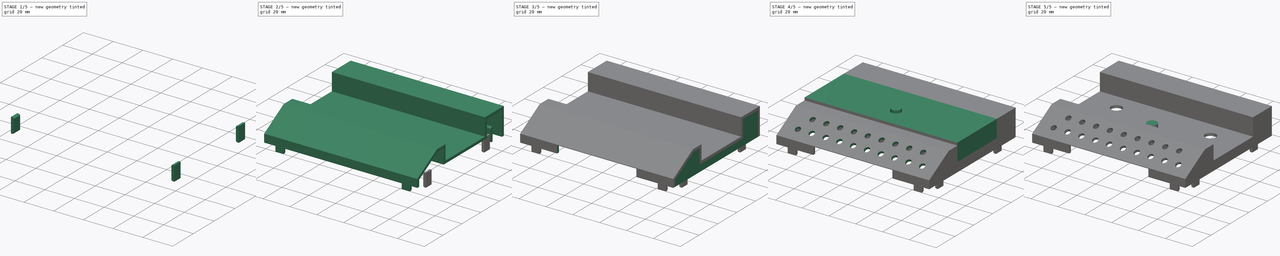
[diagram: build sequence overview — one tinted view per stage of 5, left to right]
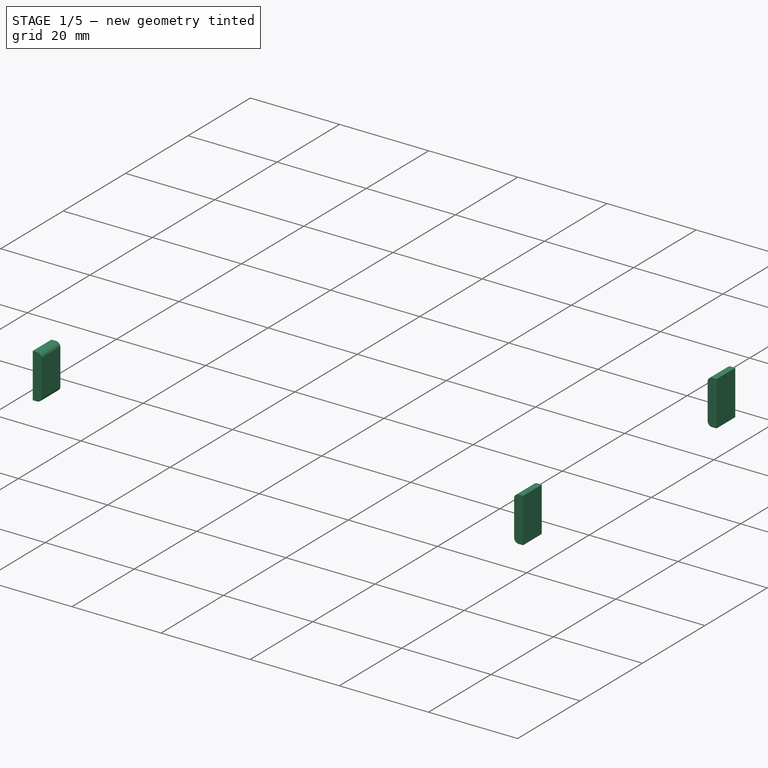
[diagram: stage 1 of 5 — iso view after this stage's code; geometry added in this stage tinted green]
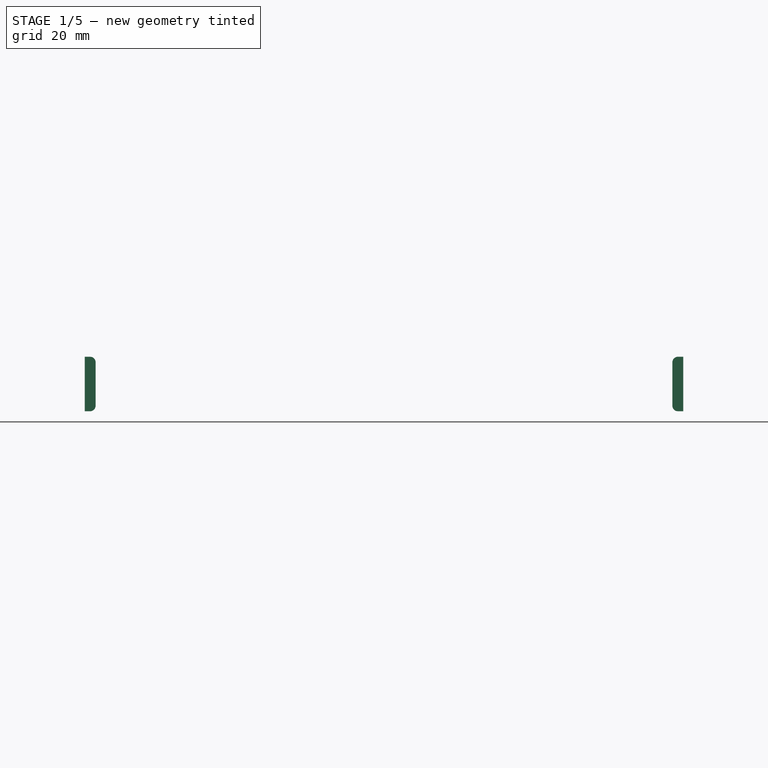
[diagram: stage 1 of 5 — front view after this stage's code; geometry added in this stage tinted green]
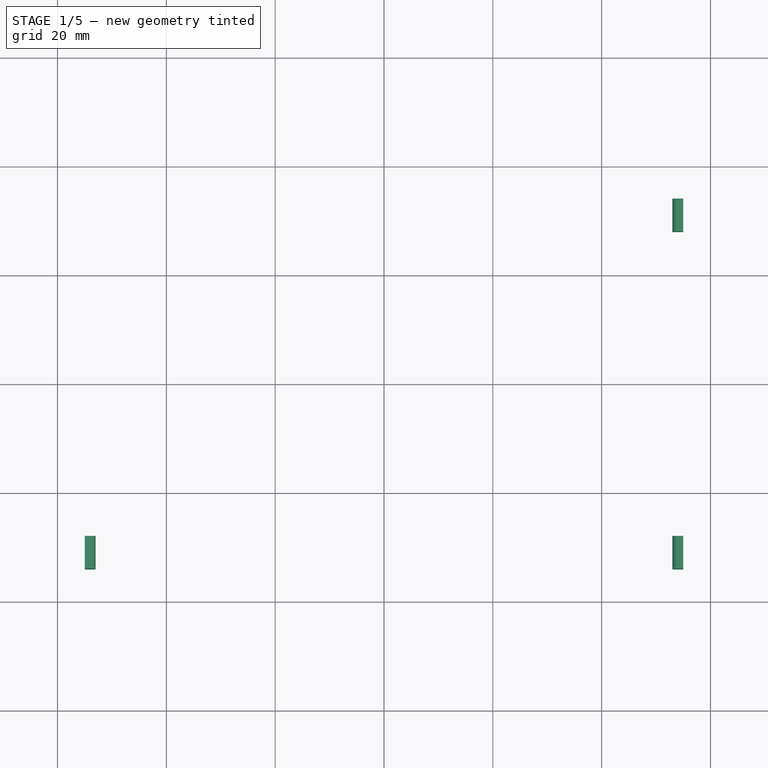
[diagram: stage 1 of 5 — top view after this stage's code; geometry added in this stage tinted green]
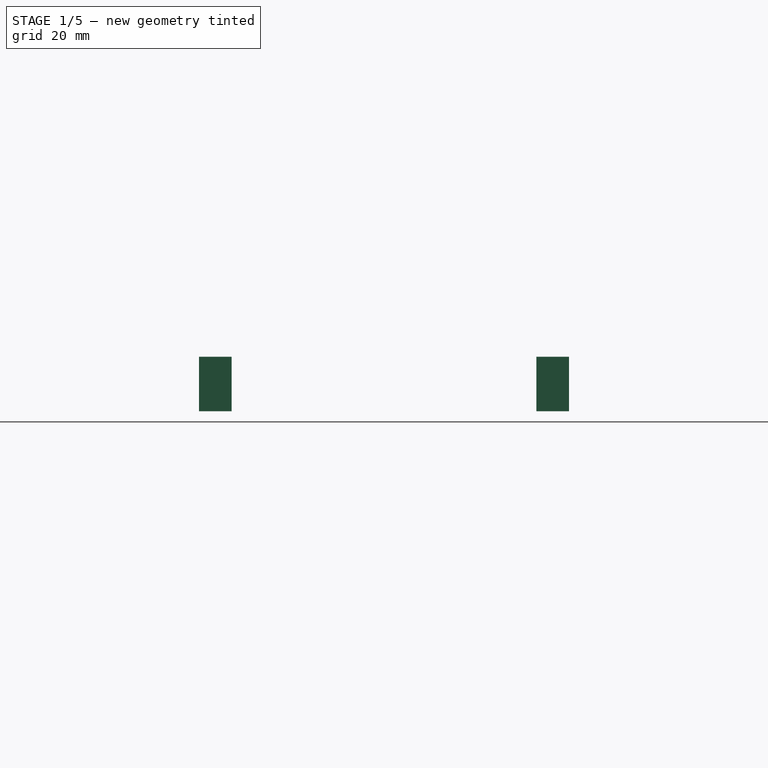
[diagram: stage 1 of 5 — right view after this stage's code; geometry added in this stage tinted green]
FCSTD DOCUMENT  (FreeCAD 0.21R33771 (Git))
Label: touch_keyboard_case_top
License: All rights reserved
LicenseURL: http://en.wikipedia.org/wiki/All_rights_reserved
objects: Sketcher::SketchObject×16, PartDesign::Pocket×8, PartDesign::Pad×7, Part::FeaturePython×7, PartDesign::Body×5, PartDesign::CoordinateSystem×3, PartDesign::Hole×2, Spreadsheet::Sheet×1, Part::Cut×1, PartDesign::Plane×1, PartDesign::Fillet×1, App::Part×1
note: 69 computed .brp shape members not serialized (recipe doc carries the construction recipe); baked Part::Feature solids carry a one-line shape summary decoded from their .brp
EXTERNAL_REF file=touch_keyboard_case_bottom.FCStd obj=Sketch
EXTERNAL_REF file=touch_keyboard_case_bottom.FCStd obj=Sketch003
EXTERNAL_REF file=touch_keyboard_case_bottom.FCStd obj=Sketch004
EXTERNAL_REF file=touch_keyboard_case_bottom.FCStd obj=Sketch005
EXTERNAL_REF file=touch_keyboard_case_bottom.FCStd obj=Sketch006
EXTERNAL_REF file=touch_keyboard_case_bottom.FCStd obj=Spreadsheet
EXTERNAL_REF file=touch_keyboard_led_strip.FCStd obj=Spreadsheet

FEATURE [PartDesign::Body] Body  label="Case Top Body"
  Group = -> [Sketch,Pad,Sketch001,Pocket,Sketch002,Pocket001,Sketch003,Pocket002,Sketch004,Pocket003,Sketch005,Sketch006,Pad001,Pad002,Local_CS,DatumPlane,Sketch013,Pocket006,Sketch014,Pocket007]
  Origin = -> Origin001
  Tip = -> Pocket007
FEATURE [PartDesign::CoordinateSystem] FrontLeftBottomEdge
  AttacherType = Attacher::AttachEngine3D
  AttachmentOffset = pos=(-57,-46,0) rot=(0,0,1;0rad)
  MapMode = 2
  Placement = pos=(-57,-46,0) rot=(0,0,1;0rad)
  Support = -> [Body]
  expr: .AttachmentOffset.Base.x = -<<D>>.width / 2
  expr: .AttachmentOffset.Base.y = -<<D>>.length / 2
FEATURE [Sketcher::SketchObject] Sketch015
  FullyConstrained = true
  MapMode = 5
  Support = -> [XY_Plane004]
  expr: Constraints[10] = <<D>>.tab_w
  expr: Constraints[9] = <<D>>.tab_l
  sketch-geometry (4):
    g0: LineSegment StartX=-3 StartY=0 StartZ=0 EndX=3 EndY=0 EndZ=0
    g1: LineSegment StartX=3 StartY=0 StartZ=0 EndX=3 EndY=-2 EndZ=0
    g2: LineSegment StartX=3 StartY=-2 StartZ=0 EndX=-3 EndY=-2 EndZ=0
    g3: LineSegment StartX=-3 StartY=-2 StartZ=0 EndX=-3 EndY=0 EndZ=0
  constraints (11):
    c: Coincident(g0,g1)
    c: Coincident(g1,g2)
    c: Coincident(g2,g3)
    c: Coincident(g3,g0)
    c: Horizontal(g2)
    c: Vertical(g1)
    c: Vertical(g3)
    c: PointOnObject(g0,g-1)
    c: Symmetric(g0,g0,g-2)
    c: DistanceX(g2,g2) = 6
    c: DistanceY(g1,g1) = 2
FEATURE [PartDesign::Pad] Pad006
  Direction = (0,0,1)
  Length = 10
  Length2 = 10
  Midplane = true
  Profile = -> Sketch015
  ReferenceAxis = -> Sketch015 [N_Axis]
  Type = 0
FEATURE [PartDesign::Fillet] Fillet
  Base = -> Pad006 [Edge9,Edge10]
  BaseFeature = -> Pad006
  Radius = 1
  SupportTransform = false
  UseAllEdges = false
  expr: Radius = <<D>>.tab_w / 2
FEATURE [Part::FeaturePython] Clone004  label="Tab6"  # Draft clone (typed FeaturePython)
  AttacherType = Attacher::AttachEngine3D
  Fuse = false
  Objects = -> [Body004]
  Placement = pos=(-55,-31,0) rot=(0,0,1;1.5708rad)
  Scale = (1,1,1)
  expr: .Placement.Base.x = -<<D>>.width / 2 + <<D>>.wall_w
  expr: .Placement.Base.y = -<<D>>.length / 2 + <<D>>.tab_y_o
  expr: .Placement.Rotation.Angle = 90 °
FEATURE [Part::FeaturePython] Clone005  label="Tab7"  # Draft clone (typed FeaturePython)
  AttacherType = Attacher::AttachEngine3D
  Fuse = false
  Objects = -> [Body004]
  Placement = pos=(55,-31,0) rot=(0,0,1;-1.5708rad)
  Scale = (1,1,1)
  expr: .Placement.Base.x = <<D>>.width / 2 - <<D>>.wall_w
  expr: .Placement.Base.y = -<<D>>.length / 2 + <<D>>.tab_y_o
  expr: .Placement.Rotation.Angle = -90 °
FEATURE [Part::FeaturePython] Clone006  label="Tab8"  # Draft clone (typed FeaturePython)
  AttacherType = Attacher::AttachEngine3D
  Fuse = false
  Objects = -> [Body004]
  Placement = pos=(55,31,0) rot=(0,0,-1;1.5708rad)
  Scale = (1,1,1)
  expr: .Placement.Base.x = <<D>>.width / 2 - <<D>>.wall_w
  expr: .Placement.Base.y = <<D>>.length / 2 - <<D>>.tab_y_o
  expr: .Placement.Rotation.Angle = 90 °
FEATURE [App::Part] Part  label="Case Top"
  Group = -> [FrontLeftBottomEdge,Body,Body001,Body002,Body003,Cut,LEDStripAttach,Body004,Clone,Clone001,Clone002,Clone003,Clone004,Clone005,Clone006]
  Origin = -> Origin
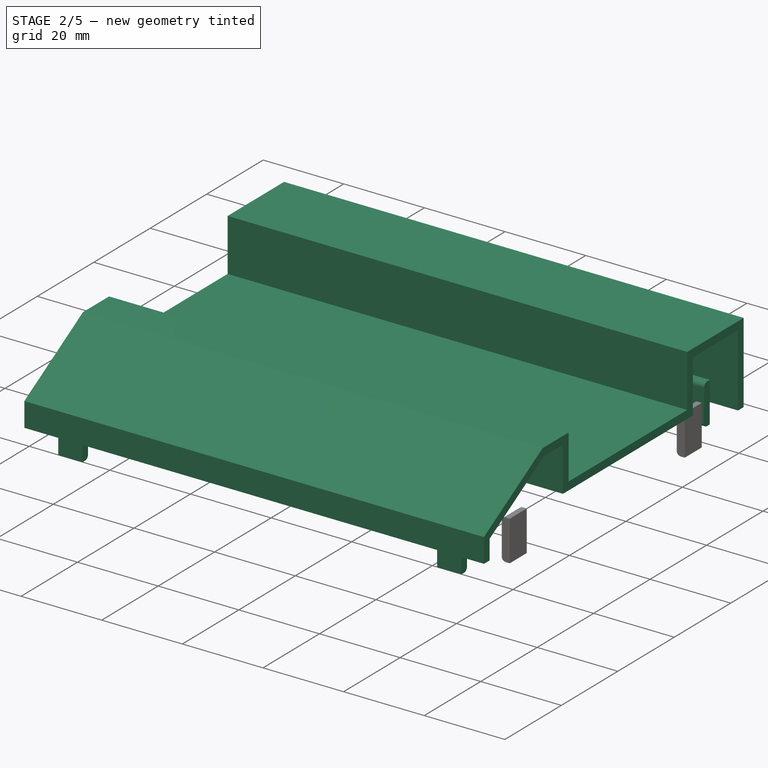
[diagram: stage 2 of 5 — iso view after this stage's code; geometry added in this stage tinted green]
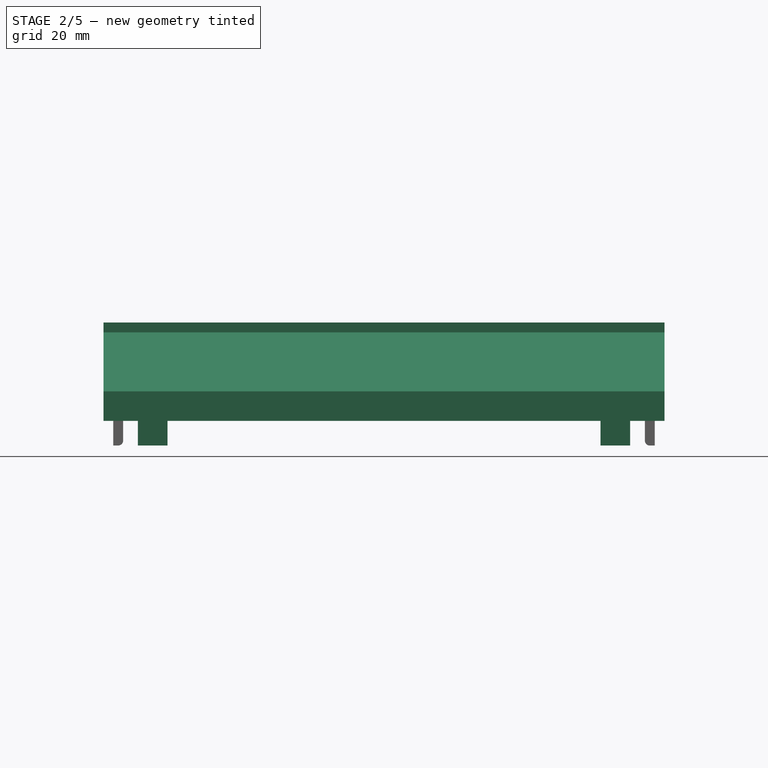
[diagram: stage 2 of 5 — front view after this stage's code; geometry added in this stage tinted green]
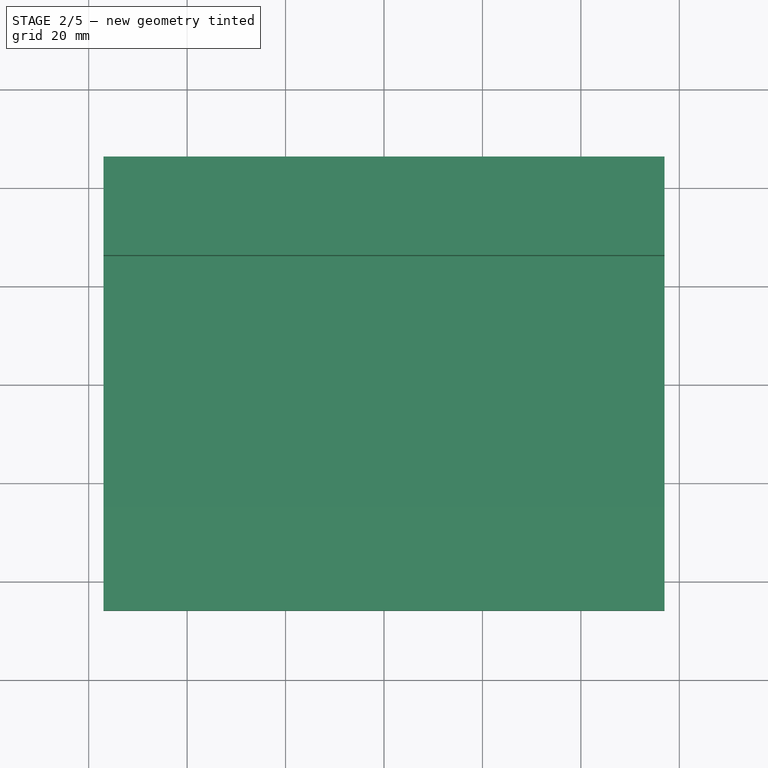
[diagram: stage 2 of 5 — top view after this stage's code; geometry added in this stage tinted green]
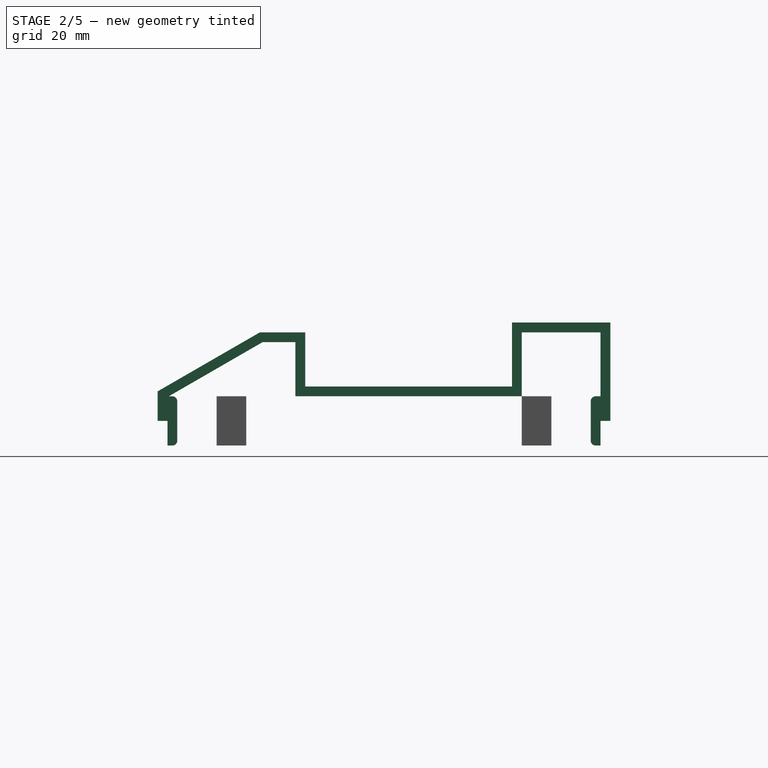
[diagram: stage 2 of 5 — right view after this stage's code; geometry added in this stage tinted green]
FEATURE [Spreadsheet::Sheet] Spreadsheet  label="D"
  cells = A3='width; B3(width)==<<touch_keyboard_case_bottom>>#<<D>>.width; A4='length; B4(length)==<<touch_keyboard_case_bottom>>#<<D>>.length; A5='top part stright height; B5(height_straight)==6 mm; A6='top part lower height; B6(height1)==7 mm; A7='top front part height; B7(height2)==18 mm; A8='top back part height; B8(height3)==20 mm; A9='front bulge width; B9(front_b_w)==30 mm; A10='back bulge width; B10(back_b_w)==20 mm; A11='wall width; B11(wall_w)==2 mm; A13='case post gap; B13(case_post_gap)==0.4 mm; A14='case post bottom; B14(case_post_bottom)==-<<touch_keyboard_case_bottom>>#<<D>>.height + <<touch_keyboard_case_bottom>>#<<D>>.pcb_h + <<touch_keyboard_case_bottom>>#<<D>>.bot_w + <<touch_keyboard_case_bottom>>#<<D>>.pcb_th + case_post_gap; A16='hole1 x; B16(hole1_x)==-<<touch_keyboard_case_bottom>>#<<Case Bottom Sketch 1>>.Constraints.hole1_x; A17='hole1 y; B17(hole1_y)==<<touch_keyboard_case_bottom>>#<<Case Bottom Sketch 1>>.Constraints.hole1_y; A18='hole2 x; B18(hole2_x)==<<touch_keyboard_case_bottom>>#<<Case Bottom Sketch 1>>.Constraints.hole2_x; A19='hole2 y; B19(hole2_y)==-<<touch_keyboard_case_bottom>>#<<Case Bottom Sketch 1>>.Constraints.hole2_y; A21='pcb hole1 x; B21(pcb_hole1_x)==-<<touch_keyboard_case_bottom>>#<<D>>.x_hole_dist1 / 2; A22='pcb hole1 y; B22(pcb_hole1_y)==<<touch_keyboard_case_bottom>>#<<D>>.length / 2 - <<touch_keyboard_case_bottom>>#<<D>>.pcb_back_d - <<touch_keyboard_case_bottom>>#<<D>>.wall_w - <<touch_keyboard_case_bottom>>#<<D>>.hole1_y_margin; A24='buttons x; B24(buttons_x)==pcb_hole1_x + 10 mm; A25='button1 y; B25(button1_y)==pcb_hole1_y - 27 mm; A26='button2 y; B26(button2_y)==pcb_hole1_y - 42 mm; A27='pot x; B27(pot_x)==pcb_hole1_x + 80 mm; A28='pot y; B28(pot_y)==pcb_hole1_y - 27 mm; A30='button hole diameter; B30(button_h_d)==8 mm; A31='pot hoe diameter; B31(pot_h_d)==8 mm; A33='threaded insert hole diameter; B33(insert_d)==3.6 mm; A34='threaded insert outer diameter; B34(insert_o_d)==4.4 mm; A35='threaded insert hole depth; B35(insert_h_depth)==8 mm; A36='threaded insert wide hole depth; B36(insert_h_w_depth)==0.8 mm; A37='threaded insert countersink diameter; B37(insert_cs_d)==4.8 mm; A38='threaded insert wall thickness; B38(insert_w_th)==4 mm; A39='case screw pcb y margin; B39(case_screw_y_m)==20 mm; A40='case screw pcb x margin; B40(case_screw_x_m)==4 mm; A41='bottom hole diameter1; B41(bot_h_d1)==6 mm; A42='bottom hole diameter2; B42(bot_h_d2)==3.5 mm; A43='bottom hole depth; B43(bot_h_depth)==3 mm; A44='bottom hole wall thickness; B44(bot_h_w_th)==2.6 mm; A45='case post bottom diameter; B45(case_post_d1)==12 mm; A46='case post top diameter; B46(case_post_d2)==5.6 mm; A49='sensors connector length; B49(sens_conn_l)==<<touch_keyboard_case_bottom>>#<<D>>.sens_conn_l; A50='sensors connector height; B50(sens_conn_h)==<<touch_keyboard_case_bottom>>#<<D>>.sensors_conn_h; A51='sensors connector top height; B51(sens_conn_top_h)==<<touch_keyboard_case_bottom>>#<<Sensor Hole Sketch>>.Constraints.sens_conn_hole_top; A53='USB conn height; B53(usb_conn_h)==<<touch_keyboard_case_bottom>>#<<D>>.usb_conn_h; A54='USB conn width; B54(usb_conn_w)==<<touch_keyboard_case_bottom>>#<<D>>.usb_conn_w; A55='USB conn extra; B55(usb_conn_extra)==<<touch_keyboard_case_bottom>>#<<D>>.usb_conn_extra; A56='USB conn top height; B56(usb_conn_top_h)==<<touch_keyboard_case_bottom>>#<<USB Hole Sketch>>.Constraints.usb_conn_hole_top; A58='MIDI conn offset; B58(midi_conn_off)==<<touch_keyboard_case_bottom>>#<<D>>.midi_conn_off; A59='MIDI conn width; B59(midi_conn_w)==<<touch_keyboard_case_bottom>>#<<D>>.midi_conn_w; A60='MIDI conn height; B60(midi_conn_h)==<<touch_keyboard_case_bottom>>#<<D>>.midi_conn_h; A61='MIDI conn top height; B61(midi_conn_top_h)==<<touch_keyboard_case_bottom>>#<<MIDI Hole Sketch>>.Constraints.midi_conn_top_h; A63='DC conn offset; B63(dc_conn_off)==<<touch_keyboard_case_bottom>>#<<D>>.dc_conn_off; A64='DC conn width; B64(dc_conn_w)==<<touch_keyboard_case_bottom>>#<<D>>.dc_conn_w; A65='DC conn height; B65(dc_conn_h)==<<touch_keyboard_case_bottom>>#<<D>>.dc_conn_h; A66='DC conn top height; B66(dc_conn_top_h)==<<touch_keyboard_case_bottom>>#<<DC Hole Sketch>>.Constraints.dc_conn_top_h; A68='LED strip offset; B68(led_strip_o)==3 mm; A69='LED strip width; B69(led_strip_w)==<<touch_keyboard_led_strip>>#<<D>>.width; A70='LED strip length; B70(led_strip_l)==<<touch_keyboard_led_strip>>#<<D>>.length; A71='LED hole diameter; B71(led_hole_d)==4 mm; A72='LED strip height; B72(led_strip_height)==5 mm; A73='top LEDS; B73(top_leds)==<<touch_keyboard_led_strip>>#<<D>>.top_leds; A74='bottom LEDS; B74(bottom_leds)==<<touch_keyboard_led_strip>>#<<D>>.bottom_leds; A75='LED x interval; B75(led_x_interval)==<<touch_keyboard_led_strip>>#<<D>>.led_x_interval; A76='bottom LED x; B76(bot_led_x)==<<touch_keyboard_led_strip>>#<<D>>.bot_led_x; A77='bottom LED y; B77(bot_led_y)==<<touch_keyboard_led_strip>>#<<D>>.bot_led_y; A78='top LED x; B78(top_led_x)==<<touch_keyboard_led_strip>>#<<D>>.top_led_x; A79='top LED y; B79(top_led_y)==<<touch_keyboard_led_strip>>#<<D>>.top_led_y; A81='tab width; B81(tab_w)==2 mm; A82='tab length; B82(tab_l)==6 mm; A83='x tab offset; B83(tab_x_o)==10 mm; A84='y tab offset; B84(tab_y_o)==15 mm; A85='tab height; B85(tab_h)==8 mm
FEATURE [Sketcher::SketchObject] Sketch  label="Top Profile Sketch"
  FullyConstrained = true
  MapMode = 5
  Placement = pos=(0,0,0) rot=(0.57735,0.57735,0.57735;2.0944rad)
  Support = -> [YZ_Plane001]
  expr: Constraints[17] = <<D>>.length
  expr: Constraints[18] = Spreadsheet.height1
  expr: Constraints[19] = <<D>>.height_straight
  expr: Constraints[21] = <<D>>.front_b_w
  expr: Constraints[22] = <<D>>.height3
  expr: Constraints[23] = <<D>>.back_b_w
  expr: Constraints[31] = <<D>>.wall_w
  expr: Constraints[35] = <<D>>.wall_w
  expr: Constraints[39] = <<D>>.wall_w
  expr: Constraints[43] = <<D>>.wall_w
  expr: Constraints[47] = <<D>>.wall_w
  expr: Constraints[51] = <<D>>.wall_w
  expr: Constraints[55] = <<D>>.wall_w
  expr: Constraints[83] = <<D>>.height2
  expr: Constraints[84] = <<D>>.wall_w
  sketch-geometry (27):
    g0: LineSegment StartX=-46 StartY=0 StartZ=0 EndX=-46 EndY=6 EndZ=0
    g1: LineSegment StartX=-46 StartY=6 StartZ=0 EndX=-25.2154 EndY=18 EndZ=0
    g2: LineSegment StartX=-25.2154 StartY=18 StartZ=0 EndX=-16 EndY=18 EndZ=0
    g3: LineSegment StartX=-16 StartY=18 StartZ=0 EndX=-16 EndY=7 EndZ=0
    g4: LineSegment StartX=-16 StartY=7 StartZ=0 EndX=26 EndY=7 EndZ=0
    g5: LineSegment StartX=26 StartY=7 StartZ=0 EndX=26 EndY=20 EndZ=0
    g6: LineSegment StartX=26 StartY=20 StartZ=0 EndX=46 EndY=20 EndZ=0
    g7: LineSegment StartX=46 StartY=20 StartZ=0 EndX=46 EndY=0 EndZ=0
    g8: LineSegment StartX=46 StartY=0 StartZ=0 EndX=-46 EndY=0 EndZ=0
    g9: LineSegment StartX=-21.2154 StartY=18 StartZ=0 EndX=-46 EndY=3.6906 EndZ=0
    g10: LineSegment StartX=-25.2154 StartY=18 StartZ=0 EndX=-24.2154 EndY=16.2679 EndZ=0
    g11: LineSegment StartX=-16 StartY=16 StartZ=0 EndX=-28.6795 EndY=16 EndZ=0
    g12: LineSegment StartX=-18 StartY=18 StartZ=0 EndX=-18 EndY=0 EndZ=0
    g13: LineSegment StartX=-18 StartY=5 StartZ=0 EndX=46 EndY=5 EndZ=0
    g14: LineSegment StartX=28 StartY=20 StartZ=0 EndX=28 EndY=0 EndZ=0
    g15: LineSegment StartX=26 StartY=18 StartZ=0 EndX=46 EndY=18 EndZ=0
    g16: LineSegment StartX=44 StartY=20 StartZ=0 EndX=44 EndY=0 EndZ=0
    g17: LineSegment StartX=46 StartY=0 StartZ=0 EndX=44 EndY=0 EndZ=0
    g18: LineSegment StartX=44 StartY=0 StartZ=0 EndX=44 EndY=18 EndZ=0
    g19: LineSegment StartX=44 StartY=18 StartZ=0 EndX=28 EndY=18 EndZ=0
    g20: LineSegment StartX=28 StartY=18 StartZ=0 EndX=28 EndY=5 EndZ=0
    g21: LineSegment StartX=28 StartY=5 StartZ=0 EndX=-18 EndY=5 EndZ=0
    g22: LineSegment StartX=-18 StartY=5 StartZ=0 EndX=-18 EndY=16 EndZ=0
    g23: LineSegment StartX=-18 StartY=16 StartZ=0 EndX=-24.6795 EndY=16 EndZ=0
    g24: LineSegment StartX=-24.6795 StartY=16 StartZ=0 EndX=-44 EndY=4.8453 EndZ=0
    g25: LineSegment StartX=-44 StartY=4.8453 StartZ=0 EndX=-44 EndY=0 EndZ=0
    g26: LineSegment StartX=-44 StartY=0 StartZ=0 EndX=-46 EndY=0 EndZ=0
  constraints (88):
    c: PointOnObject(g0,g-1)
    c: Vertical(g0)
    c: Coincident(g1,g0)
    c: Coincident(g2,g1)
    c: Horizontal(g2)
    c: Coincident(g3,g2)
    c: Vertical(g3)
    c: Coincident(g4,g3)
    c: Horizontal(g4)
    c: Coincident(g5,g4)
    c: Vertical(g5)
    c: Coincident(g6,g5)
    c: Horizontal(g6)
    c: Coincident(g7,g6)
    c: Vertical(g7)
    c: Coincident(g8,g7)
    c: Coincident(g8,g0)
    c: DistanceX(g8,g8) = 92
    c: DistanceY(g-1,g3) = 7
    c: DistanceY(g0,g0) = 6
    c: Angle(g8,g1) = 0.523599
    c: DistanceX(g0,g2) = 30
    c: DistanceY(g7,g6) = 20
    c: DistanceX(g6,g6) = 20
    c: Symmetric(g0,g7,g-2)
    c: PointOnObject(g9,g2)
    c: PointOnObject(g9,g0)
    c: Parallel(g9,g1)
    c: Coincident(g10,g1)
    c: PointOnObject(g10,g9)
    c: Perpendicular(g10,g9)
    c: Distance(g10) = 2
    c: PointOnObject(g11,g3)
    c: PointOnObject(g11,g1)
    c: Horizontal(g11)
    c: DistanceY(g11,g2) = 2
    c: PointOnObject(g12,g2)
    c: Vertical(g12)
    c: PointOnObject(g12,g8)
    c: DistanceX(g12,g2) = 2
    c: PointOnObject(g13,g12)
    c: PointOnObject(g13,g7)
    c: Horizontal(g13)
    c: DistanceY(g13,g3) = 2
    c: PointOnObject(g14,g6)
    c: PointOnObject(g14,g8)
    c: Vertical(g14)
    c: DistanceX(g5,g14) = 2
    c: PointOnObject(g15,g5)
    c: PointOnObject(g15,g7)
    c: Horizontal(g15)
    c: DistanceY(g15,g5) = 2
    c: PointOnObject(g16,g6)
    c: PointOnObject(g16,g8)
    c: Vertical(g16)
    c: DistanceX(g16,g6) = 2
    c: Coincident(g17,g7)
    c: Coincident(g17,g16)
    c: Coincident(g18,g17)
    c: PointOnObject(g18,g16)
    c: PointOnObject(g18,g15)
    c: Coincident(g19,g18)
    c: PointOnObject(g19,g14)
    c: Horizontal(g19)
    c: Coincident(g20,g19)
    c: PointOnObject(g20,g13)
    c: Vertical(g20)
    c: Coincident(g21,g20)
    c: PointOnObject(g21,g12)
    c: Horizontal(g21)
    c: Coincident(g22,g21)
    c: PointOnObject(g22,g11)
    c: Vertical(g22)
    c: Coincident(g23,g22)
    c: PointOnObject(g23,g9)
    c: Horizontal(g23)
    c: Coincident(g24,g23)
    c: PointOnObject(g24,g9)
    c: Coincident(g25,g24)
    c: PointOnObject(g25,g8)
    c: Vertical(g25)
    c: Coincident(g26,g25)
    c: Coincident(g26,g0)
    c: DistanceY(g0,g1) = 18
    c: DistanceX(g26,g26) = 2
    c: DistanceX(g3,g-1) = 16  'cutout_minus_x'
    c: DistanceX(g-1,g4) = 26  'cutout_plus_x'
    c: DistanceY(g4,g5) = 13  'cutout_height'
FEATURE [PartDesign::Pad] Pad
  Direction = (1,-2e-16,3e-16)
  Length = 114
  Length2 = 10
  Midplane = true
  Placement = pos=(0,0,0) rot=(1,1,1;2.0944rad)
  Profile = -> Sketch
  ReferenceAxis = -> Sketch [N_Axis]
  Type = 0
  expr: Length = <<D>>.width
FEATURE [PartDesign::Body] Body004  label="Tab1"
  Group = -> [Sketch015,Pad006,Fillet]
  Origin = -> Origin005
  Placement = pos=(-47,44,0) rot=(0,0,1;0rad)
  Tip = -> Fillet
  expr: .Placement.Base.x = -<<D>>.width / 2 + <<D>>.tab_x_o
  expr: .Placement.Base.y = <<D>>.length / 2 - <<D>>.wall_w
FEATURE [Part::FeaturePython] Clone  label="Tab2"  # Draft clone (typed FeaturePython)
  AttacherType = Attacher::AttachEngine3D
  Fuse = false
  Objects = -> [Body004]
  Placement = pos=(47,44,0) rot=(0,0,1;0rad)
  Scale = (1,1,1)
  expr: .Placement.Base.x = <<D>>.width / 2 - <<D>>.tab_x_o
  expr: .Placement.Base.y = <<D>>.length / 2 - <<D>>.wall_w
FEATURE [Part::FeaturePython] Clone001  label="Tab3"  # Draft clone (typed FeaturePython)
  AttacherType = Attacher::AttachEngine3D
  Fuse = false
  Objects = -> [Body004]
  Placement = pos=(47,-44,0) rot=(0,0,1;3.14159rad)
  Scale = (1,1,1)
  expr: .Placement.Base.x = <<D>>.width / 2 - <<D>>.tab_x_o
  expr: .Placement.Base.y = -<<D>>.length / 2 + <<D>>.wall_w
  expr: .Placement.Rotation.Angle = 180 °
FEATURE [Part::FeaturePython] Clone002  label="Tab4"  # Draft clone (typed FeaturePython)
  AttacherType = Attacher::AttachEngine3D
  Fuse = false
  Objects = -> [Body004]
  Placement = pos=(-47,-44,0) rot=(0,0,1;3.14159rad)
  Scale = (1,1,1)
  expr: .Placement.Base.x = -<<D>>.width / 2 + <<D>>.tab_x_o
  expr: .Placement.Base.y = -<<D>>.length / 2 + <<D>>.wall_w
  expr: .Placement.Rotation.Angle = 180 °
FEATURE [Part::FeaturePython] Clone003  label="Tab5"  # Draft clone (typed FeaturePython)
  AttacherType = Attacher::AttachEngine3D
  Fuse = false
  Objects = -> [Body004]
  Placement = pos=(-55,31,0) rot=(0,0,1;1.5708rad)
  Scale = (1,1,1)
  expr: .Placement.Base.x = -<<D>>.width / 2 + <<D>>.wall_w
  expr: .Placement.Base.y = <<D>>.length / 2 - <<D>>.tab_y_o
  expr: .Placement.Rotation.Angle = 90 °
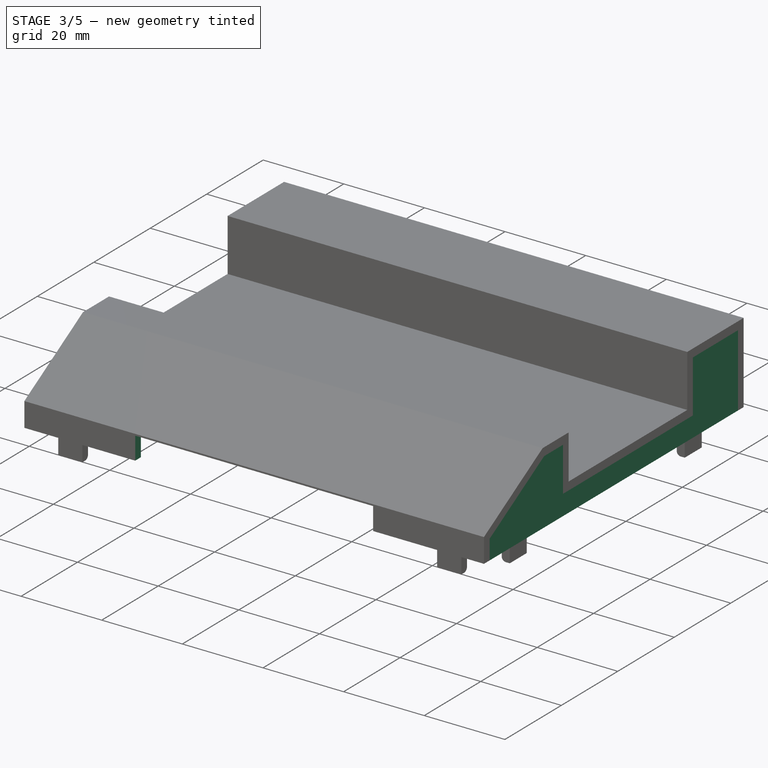
[diagram: stage 3 of 5 — iso view after this stage's code; geometry added in this stage tinted green]
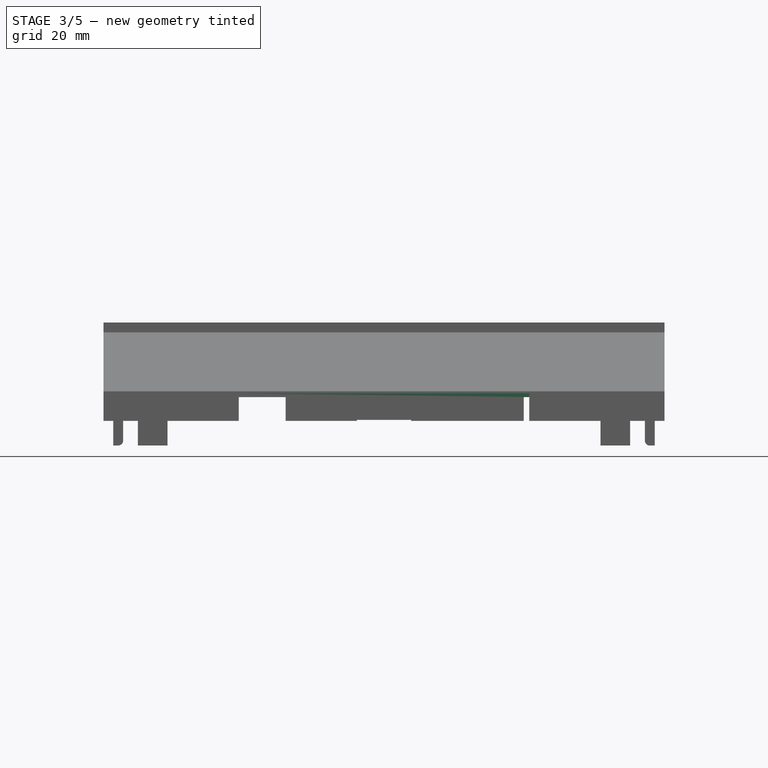
[diagram: stage 3 of 5 — front view after this stage's code; geometry added in this stage tinted green]
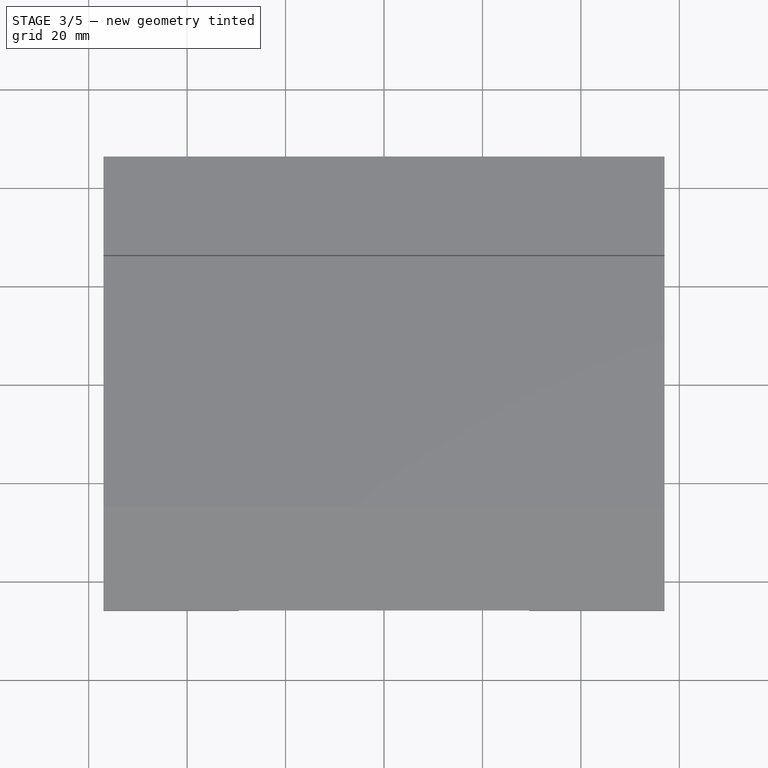
[diagram: stage 3 of 5 — top view after this stage's code; geometry added in this stage tinted green]
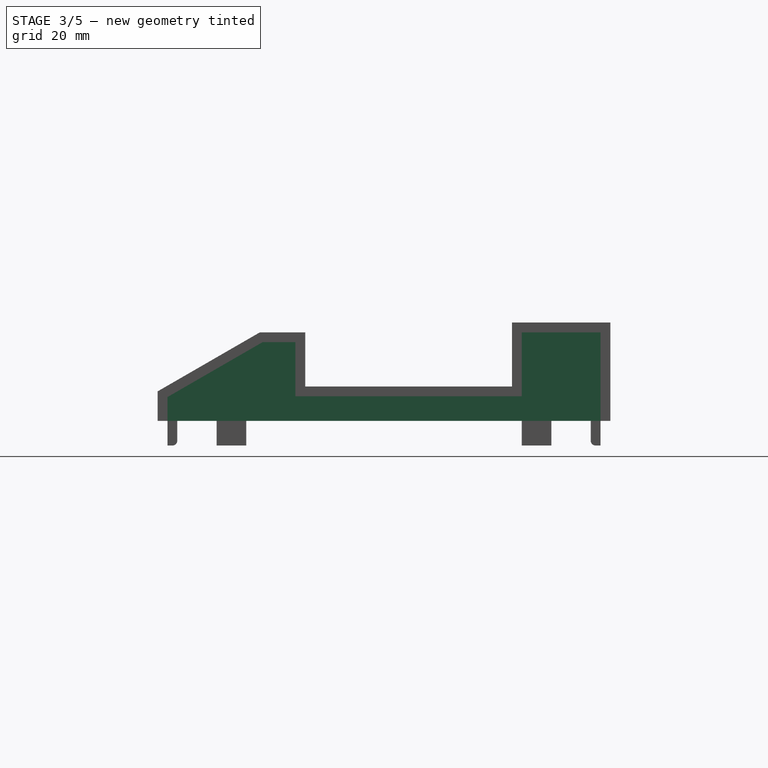
[diagram: stage 3 of 5 — right view after this stage's code; geometry added in this stage tinted green]
FEATURE [Sketcher::SketchObject] Sketch001
  FullyConstrained = true
  MapMode = 5
  Placement = pos=(-2.04e-14,-46,1.53e-14) rot=(-0.57735,-0.57735,0.57735;4.18879rad)
  Support = -> [Pad]
  expr: Constraints[10] = <<D>>.sens_conn_top_h
  expr: Constraints[8] = <<D>>.sens_conn_l
  expr: Constraints[9] = <<D>>.sens_conn_h
  sketch-geometry (4):
    g0: LineSegment StartX=-5.6 StartY=-29.5 StartZ=0 EndX=4.4 EndY=-29.5 EndZ=0
    g1: LineSegment StartX=4.4 StartY=-29.5 StartZ=0 EndX=4.4 EndY=29.5 EndZ=0
    g2: LineSegment StartX=4.4 StartY=29.5 StartZ=0 EndX=-5.6 EndY=29.5 EndZ=0
    g3: LineSegment StartX=-5.6 StartY=29.5 StartZ=0 EndX=-5.6 EndY=-29.5 EndZ=0
  constraints (11):
    c: Coincident(g0,g1)
    c: Coincident(g1,g2)
    c: Coincident(g2,g3)
    c: Coincident(g3,g0)
    c: Horizontal(g0)
    c: Horizontal(g2)
    c: Vertical(g1)
    c: Symmetric(g2,g0,g-1)
    c: DistanceY(g1,g1) = 59
    c: DistanceX(g0,g0) = 10
    c: DistanceX(g0,g-1) = 5.6
FEATURE [PartDesign::Pocket] Pocket
  BaseFeature = -> Pad
  Direction = (4e-16,1,-2e-16)
  Length = 2
  Length2 = 5
  Placement = pos=(0,0,0) rot=(1,1,1;2.0944rad)
  Profile = -> Sketch001
  ReferenceAxis = -> Sketch001 [N_Axis]
  Type = 0
  expr: Length = <<D>>.wall_w
FEATURE [Sketcher::SketchObject] Sketch002
  AttachmentOffset = pos=(0,0,0) rot=(0,0,1;-1.5708rad)
  FullyConstrained = true
  MapMode = 5
  Placement = pos=(2.04e-14,46,-3.06e-14) rot=(0,-0.707107,-0.707107;3.14159rad)
  Support = -> [Pocket]
  expr: Constraints[10] = <<D>>.usb_conn_h + <<D>>.usb_conn_extra * 2
  expr: Constraints[7] = <<D>>.usb_conn_w + <<D>>.usb_conn_extra * 2
  expr: Constraints[9] = <<D>>.usb_conn_top_h
  sketch-geometry (4):
    g0: LineSegment StartX=-5.5 StartY=0.2 StartZ=0 EndX=5.5 EndY=0.2 EndZ=0
    g1: LineSegment StartX=5.5 StartY=0.2 StartZ=0 EndX=5.5 EndY=-6 EndZ=0
    g2: LineSegment StartX=5.5 StartY=-6 StartZ=0 EndX=-5.5 EndY=-6 EndZ=0
    g3: LineSegment StartX=-5.5 StartY=-6 StartZ=0 EndX=-5.5 EndY=0.2 EndZ=0
  constraints (11):
    c: Coincident(g0,g1)
    c: Coincident(g1,g2)
    c: Coincident(g2,g3)
    c: Coincident(g3,g0)
    c: Horizontal(g0)
    c: Vertical(g1)
    c: Vertical(g3)
    c: DistanceX(g2,g2) = 11
    c: Symmetric(g1,g2,g-2)
    c: DistanceY(g-1,g0) = 0.2
    c: DistanceY(g3,g3) = 6.2
FEATURE [PartDesign::Pocket] Pocket001
  BaseFeature = -> Pocket
  Direction = (-5e-16,-1,6e-16)
  Length = 2
  Length2 = 5
  Placement = pos=(0,0,0) rot=(1,1,1;2.0944rad)
  Profile = -> Sketch002
  ReferenceAxis = -> Sketch002 [N_Axis]
  Type = 0
  expr: Length = <<D>>.wall_w
FEATURE [Sketcher::SketchObject] Sketch003
  AttachmentOffset = pos=(0,0,0) rot=(0,0,1;-1.5708rad)
  FullyConstrained = true
  MapMode = 5
  Placement = pos=(2.04e-14,46,-4.6e-14) rot=(0,-0.707107,-0.707107;3.14159rad)
  Support = -> [Pocket001]
  expr: Constraints[11] = <<D>>.midi_conn_off
  expr: Constraints[12] = <<D>>.midi_conn_w
  expr: Constraints[13] = <<D>>.midi_conn_h
  expr: Constraints[14] = <<D>>.midi_conn_top_h
  sketch-geometry (5):
    g0: LineSegment StartX=19.98 StartY=16.6 StartZ=0 EndX=40.98 EndY=16.6 EndZ=0
    g1: LineSegment StartX=40.98 StartY=16.6 StartZ=0 EndX=40.98 EndY=-4.4 EndZ=0
    g2: LineSegment StartX=40.98 StartY=-4.4 StartZ=0 EndX=19.98 EndY=-4.4 EndZ=0
    g3: LineSegment StartX=19.98 StartY=-4.4 StartZ=0 EndX=19.98 EndY=16.6 EndZ=0
    g4: LineSegment StartX=30.48 StartY=16.6 StartZ=0 EndX=30.48 EndY=-4.4 EndZ=0
  constraints (15):
    c: Coincident(g0,g1)
    c: Coincident(g1,g2)
    c: Coincident(g2,g3)
    c: Coincident(g3,g0)
    c: Horizontal(g0)
    c: Horizontal(g2)
    c: Vertical(g1)
    c: Vertical(g3)
    c: PointOnObject(g4,g2)
    c: Vertical(g4)
    c: Symmetric(g0,g0,g4)
    c: DistanceX(g-1,g4) = 30.48
    c: DistanceX(g0,g0) = 21
    c: DistanceY(g3,g3) = 21
    c: DistanceY(g-1,g0) = 16.6
FEATURE [PartDesign::Pocket] Pocket002
  BaseFeature = -> Pocket001
  Direction = (-5e-16,-1,7e-16)
  Length = 2
  Length2 = 5
  Placement = pos=(0,0,0) rot=(1,1,1;2.0944rad)
  Profile = -> Sketch003
  ReferenceAxis = -> Sketch003 [N_Axis]
  Type = 0
  expr: Length = <<D>>.wall_w
FEATURE [Sketcher::SketchObject] Sketch004
  AttachmentOffset = pos=(0,0,0) rot=(0,0,1;-1.5708rad)
  FullyConstrained = true
  MapMode = 5
  Placement = pos=(2.04e-14,46,-6.13e-14) rot=(0,-0.707107,-0.707107;3.14159rad)
  Support = -> [Pocket002]
  expr: Constraints[11] = <<D>>.dc_conn_off
  expr: Constraints[12] = <<D>>.dc_conn_w
  expr: Constraints[13] = <<D>>.dc_conn_h
  expr: Constraints[14] = <<D>>.dc_conn_top_h
  sketch-geometry (5):
    g0: LineSegment StartX=-37.6 StartY=6.6 StartZ=0 EndX=-28.4 EndY=6.6 EndZ=0
    g1: LineSegment StartX=-28.4 StartY=6.6 StartZ=0 EndX=-28.4 EndY=-4.4 EndZ=0
    g2: LineSegment StartX=-28.4 StartY=-4.4 StartZ=0 EndX=-37.6 EndY=-4.4 EndZ=0
    g3: LineSegment StartX=-37.6 StartY=-4.4 StartZ=0 EndX=-37.6 EndY=6.6 EndZ=0
    g4: LineSegment StartX=-33 StartY=6.6 StartZ=0 EndX=-33 EndY=-4.4 EndZ=0
  constraints (15):
    c: Coincident(g0,g1)
    c: Coincident(g1,g2)
    c: Coincident(g2,g3)
    c: Coincident(g3,g0)
    c: Horizontal(g0)
    c: Horizontal(g2)
    c: Vertical(g1)
    c: Vertical(g3)
    c: PointOnObject(g4,g2)
    c: Vertical(g4)
    c: Symmetric(g0,g0,g4)
    c: DistanceX(g4,g-1) = 33
    c: DistanceX(g0,g0) = 9.2
    c: DistanceY(g3,g3) = 11
    c: DistanceY(g-1,g0) = 6.6
FEATURE [PartDesign::Pocket] Pocket003
  BaseFeature = -> Pocket002
  Direction = (-5e-16,-1,1.4e-15)
  Length = 2
  Length2 = 5
  Placement = pos=(0,0,0) rot=(1,1,1;2.0944rad)
  Profile = -> Sketch004
  ReferenceAxis = -> Sketch004 [N_Axis]
  Type = 0
  expr: Length = <<D>>.wall_w
FEATURE [Sketcher::SketchObject] Sketch005
  AttachmentOffset = pos=(0,0,-57) rot=(0,0,1;0rad)
  ExternalGeometry = -> [Sketch]
  FullyConstrained = true
  MapMode = 5
  Placement = pos=(-57,1.27e-14,-1.27e-14) rot=(0.57735,0.57735,0.57735;2.0944rad)
  Support = -> [YZ_Plane001]
  expr: .AttachmentOffset.Base.z = -<<D>>.width / 2
  sketch-geometry (9):
    g0: LineSegment StartX=-46 StartY=0 StartZ=0 EndX=46 EndY=0 EndZ=0
    g1: LineSegment StartX=46 StartY=0 StartZ=0 EndX=46 EndY=20 EndZ=0
    g2: LineSegment StartX=46 StartY=20 StartZ=0 EndX=26 EndY=20 EndZ=0
    g3: LineSegment StartX=26 StartY=20 StartZ=0 EndX=26 EndY=7 EndZ=0
    g4: LineSegment StartX=26 StartY=7 StartZ=0 EndX=-16 EndY=7 EndZ=0
    g5: LineSegment StartX=-16 StartY=7 StartZ=0 EndX=-16 EndY=18 EndZ=0
    g6: LineSegment StartX=-16 StartY=18 StartZ=0 EndX=-25.2154 EndY=18 EndZ=0
    g7: LineSegment StartX=-25.2154 StartY=18 StartZ=0 EndX=-46 EndY=6 EndZ=0
    g8: LineSegment StartX=-46 StartY=6 StartZ=0 EndX=-46 EndY=0 EndZ=0
  constraints (18):
    c: Coincident(g0,g-3)
    c: Coincident(g0,g-10)
    c: Coincident(g1,g0)
    c: Coincident(g1,g-10)
    c: Coincident(g2,g1)
    c: Coincident(g2,g-9)
    c: Coincident(g3,g2)
    c: Coincident(g3,g-8)
    c: Coincident(g4,g3)
    c: Coincident(g4,g-7)
    c: Coincident(g5,g4)
    c: Coincident(g5,g-6)
    c: Coincident(g6,g5)
    c: Coincident(g6,g-5)
    c: Coincident(g7,g6)
    c: Coincident(g7,g-4)
    c: Coincident(g8,g7)
    c: Coincident(g8,g0)
FEATURE [Sketcher::SketchObject] Sketch006
  AttachmentOffset = pos=(0,0,57) rot=(0,0,1;0rad)
  ExternalGeometry = -> [Sketch]
  FullyConstrained = true
  MapMode = 5
  Placement = pos=(57,-1.27e-14,1.27e-14) rot=(0.57735,0.57735,0.57735;2.0944rad)
  Support = -> [YZ_Plane001]
  expr: .AttachmentOffset.Base.z = <<D>>.width / 2
  sketch-geometry (9):
    g0: LineSegment StartX=-46 StartY=0 StartZ=0 EndX=46 EndY=0 EndZ=0
    g1: LineSegment StartX=46 StartY=0 StartZ=0 EndX=46 EndY=20 EndZ=0
    g2: LineSegment StartX=46 StartY=20 StartZ=0 EndX=26 EndY=20 EndZ=0
    g3: LineSegment StartX=26 StartY=20 StartZ=0 EndX=26 EndY=7 EndZ=0
    g4: LineSegment StartX=26 StartY=7 StartZ=0 EndX=-16 EndY=7 EndZ=0
    g5: LineSegment StartX=-16 StartY=7 StartZ=0 EndX=-16 EndY=18 EndZ=0
    g6: LineSegment StartX=-16 StartY=18 StartZ=0 EndX=-25.2154 EndY=18 EndZ=0
    g7: LineSegment StartX=-25.2154 StartY=18 StartZ=0 EndX=-46 EndY=6 EndZ=0
    g8: LineSegment StartX=-46 StartY=6 StartZ=0 EndX=-46 EndY=0 EndZ=0
  constraints (18):
    c: Coincident(g0,g-3)
    c: Coincident(g0,g-10)
    c: Coincident(g1,g0)
    c: Coincident(g1,g-10)
    c: Coincident(g2,g1)
    c: Coincident(g2,g-9)
    c: Coincident(g3,g2)
    c: Coincident(g3,g-8)
    c: Coincident(g4,g3)
    c: Coincident(g4,g-7)
    c: Coincident(g5,g4)
    c: Coincident(g5,g-6)
    c: Coincident(g6,g5)
    c: Coincident(g6,g-5)
    c: Coincident(g7,g6)
    c: Coincident(g7,g-4)
    c: Coincident(g8,g7)
    c: Coincident(g8,g0)
FEATURE [PartDesign::Pad] Pad001
  BaseFeature = -> Pocket003
  Direction = (1,-2e-16,3e-16)
  Length = 2
  Length2 = 10
  Placement = pos=(0,0,0) rot=(1,1,1;2.0944rad)
  Profile = -> Sketch005
  ReferenceAxis = -> Sketch005 [N_Axis]
  Type = 0
  expr: Length = <<D>>.wall_w
FEATURE [PartDesign::Pad] Pad002
  BaseFeature = -> Pad001
  Direction = (1,-2e-16,3e-16)
  Length = 2
  Length2 = 10
  Placement = pos=(0,0,0) rot=(1,1,1;2.0944rad)
  Profile = -> Sketch006
  ReferenceAxis = -> Sketch006 [N_Axis]
  Reversed = true
  Type = 0
  expr: Length = <<D>>.wall_w
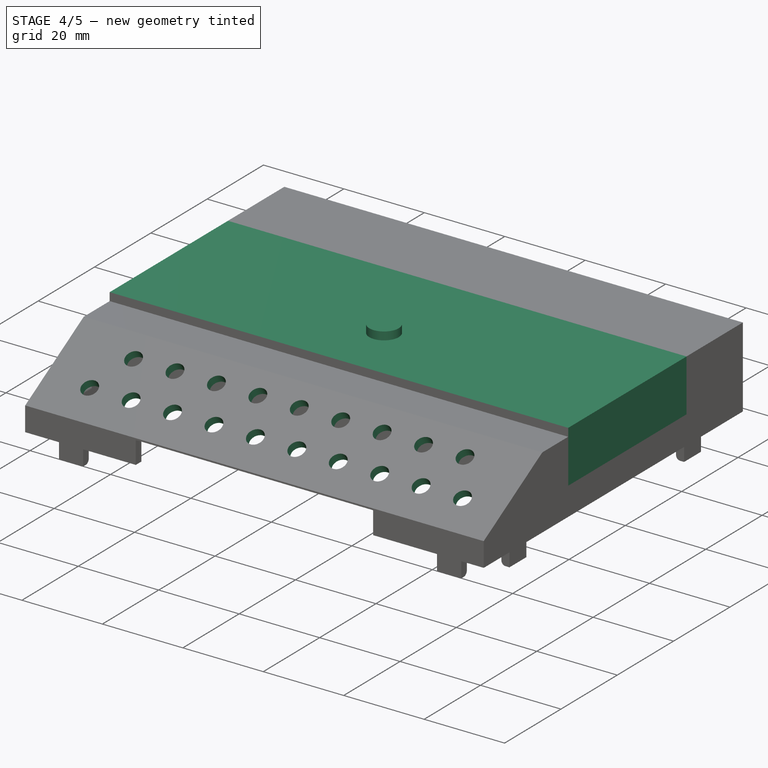
[diagram: stage 4 of 5 — iso view after this stage's code; geometry added in this stage tinted green]
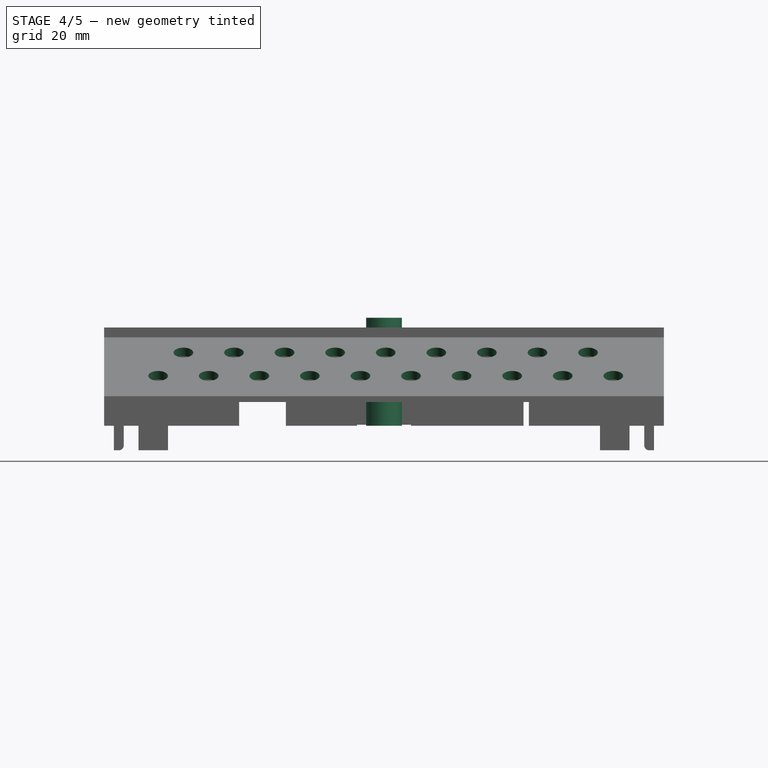
[diagram: stage 4 of 5 — front view after this stage's code; geometry added in this stage tinted green]
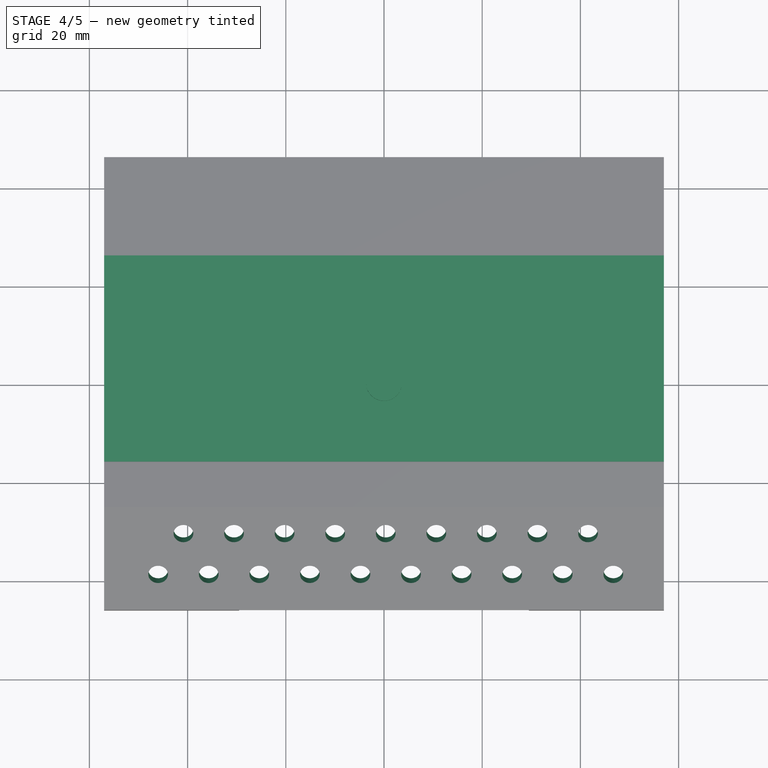
[diagram: stage 4 of 5 — top view after this stage's code; geometry added in this stage tinted green]
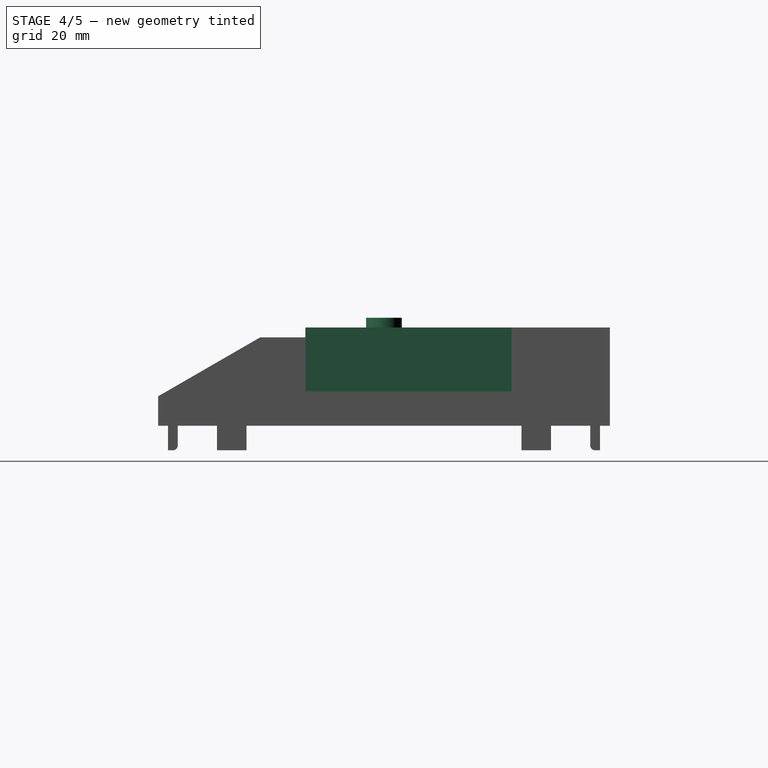
[diagram: stage 4 of 5 — right view after this stage's code; geometry added in this stage tinted green]
FEATURE [PartDesign::Body] Body001  label="Post1"
  Group = -> [Sketch007,Pad003,Sketch008,Pocket004,Sketch009,Hole]
  Origin = -> Origin002
  Placement = pos=(-46,23.5,-4) rot=(0,0,1;0rad)
  Tip = -> Hole
  expr: .Placement.Base.x = <<D>>.hole1_x
  expr: .Placement.Base.y = <<D>>.hole1_y
  expr: .Placement.Base.z = <<D>>.case_post_bottom
FEATURE [Sketcher::SketchObject] Sketch010
  FullyConstrained = true
  MapMode = 5
  Support = -> [XY_Plane002]
  expr: Constraints[1] = <<D>>.bot_h_d1 + <<D>>.bot_h_w_th / 2
  sketch-geometry (1):
    g0: Circle CenterX=0 CenterY=0 CenterZ=0 NormalX=0 NormalY=0 NormalZ=1 AngleXU=0 Radius=3.65
  constraints (2):
    c: Coincident(g0,g-1)
    c: Diameter(g0) = 7.3
FEATURE [PartDesign::Pad] Pad004
  Direction = (0,0,1)
  Length = 22
  Length2 = 10
  Profile = -> Sketch010
  ReferenceAxis = -> Sketch010 [N_Axis]
  Type = 0
  expr: Length = <<D>>.height2 - <<D>>.case_post_bottom
FEATURE [Sketcher::SketchObject] Sketch011
  FullyConstrained = true
  MapMode = 5
  Placement = pos=(0,0,0) rot=(1,0,0;3.14159rad)
  Support = -> [Pad004]
  expr: Constraints[1] = <<D>>.insert_d
  sketch-geometry (1):
    g0: Circle CenterX=0 CenterY=0 CenterZ=0 NormalX=0 NormalY=0 NormalZ=1 AngleXU=0 Radius=1.8
  constraints (2):
    c: Coincident(g0,g-1)
    c: Diameter(g0) = 3.6
FEATURE [PartDesign::Pocket] Pocket005
  BaseFeature = -> Pad004
  Direction = (0,0,1)
  Length = 8
  Length2 = 5
  Profile = -> Sketch011
  ReferenceAxis = -> Sketch011 [N_Axis]
  Type = 0
  expr: Length = <<D>>.insert_h_depth
FEATURE [PartDesign::Body] Body002  label="Post002"
  Group = -> [Sketch010,Pad004,Sketch011,Pocket005,Hole001]
  Origin = -> Origin003
  Placement = pos=(46,-17.5,-4) rot=(0,0,1;0rad)
  Tip = -> Hole001
  expr: .Placement.Base.x = <<D>>.hole2_x
  expr: .Placement.Base.y = <<D>>.hole2_y
  expr: .Placement.Base.z = <<D>>.case_post_bottom
FEATURE [Sketcher::SketchObject] Sketch012
  FullyConstrained = true
  MapMode = 5
  Placement = pos=(0,0,0) rot=(0.57735,0.57735,0.57735;2.0944rad)
  Support = -> [YZ_Plane003]
  expr: Constraints[10] = <<D>>.height1
  expr: Constraints[11] = <<D>>.height3
  expr: Constraints[8] = <<Top Profile Sketch>>.Constraints.cutout_minus_x
  expr: Constraints[9] = <<Top Profile Sketch>>.Constraints.cutout_plus_x
  sketch-geometry (4):
    g0: LineSegment StartX=-16 StartY=20 StartZ=0 EndX=26 EndY=20 EndZ=0
    g1: LineSegment StartX=26 StartY=20 StartZ=0 EndX=26 EndY=7 EndZ=0
    g2: LineSegment StartX=26 StartY=7 StartZ=0 EndX=-16 EndY=7 EndZ=0
    g3: LineSegment StartX=-16 StartY=7 StartZ=0 EndX=-16 EndY=20 EndZ=0
  constraints (12):
    c: Coincident(g0,g1)
    c: Coincident(g1,g2)
    c: Coincident(g2,g3)
    c: Coincident(g3,g0)
    c: Horizontal(g0)
    c: Horizontal(g2)
    c: Vertical(g1)
    c: Vertical(g3)
    c: DistanceX(g2,g-1) = 16
    c: DistanceX(g-1,g1) = 26
    c: DistanceY(g-1,g1) = 7
    c: DistanceY(g-1,g0) = 20
FEATURE [PartDesign::Pad] Pad005
  Direction = (1,-2e-16,3e-16)
  Length = 114
  Length2 = 10
  Midplane = true
  Placement = pos=(0,0,0) rot=(1,1,1;2.0944rad)
  Profile = -> Sketch012
  ReferenceAxis = -> Sketch012 [N_Axis]
  Type = 0
  expr: Length = <<D>>.width
FEATURE [PartDesign::CoordinateSystem] Local_CS  label="Front_Origin"
  AttacherType = Attacher::AttachEngine3D
  Placement = pos=(0,-46,6) rot=(1,0,0;0.523599rad)
  expr: .Placement.Base.y = -<<D>>.length / 2
  expr: .Placement.Base.z = <<D>>.height_straight
FEATURE [PartDesign::Plane] DatumPlane
  Length = 135.848
  MapMode = 5
  Placement = pos=(0,-46,6) rot=(1,0,0;0.523599rad)
  ResizeMode = 0
  Support = -> [Local_CS]
  Width = 126.522
FEATURE [Sketcher::SketchObject] Sketch013
  FullyConstrained = true
  MapMode = 5
  Placement = pos=(0,-46,6) rot=(1,0,0;0.523599rad)
  Support = -> [DatumPlane]
  expr: Constraints[10] = <<D>>.led_hole_d
  expr: Constraints[11] = <<D>>.led_strip_o
  expr: Constraints[12] = <<D>>.led_hole_d
  expr: Constraints[13] = <<D>>.bot_led_x
  expr: Constraints[14] = <<D>>.bot_led_y
  expr: Constraints[15] = <<D>>.top_led_x
  expr: Constraints[16] = <<D>>.top_led_y
  expr: Constraints[20] = <<D>>.led_x_interval
  expr: Constraints[60] = <<D>>.led_x_interval
  expr: Constraints[8] = <<D>>.led_strip_l
  expr: Constraints[9] = <<D>>.led_strip_w
  sketch-geometry (40):
    g0: Circle CenterX=-40.85 CenterY=17.8 CenterZ=0 NormalX=0 NormalY=0 NormalZ=1 AngleXU=0 Radius=2
    g1: LineSegment StartX=-54.5 StartY=23.5 StartZ=0 EndX=54.5 EndY=23.5 EndZ=0
    g2: LineSegment StartX=54.5 StartY=23.5 StartZ=0 EndX=54.5 EndY=3 EndZ=0
    g3: LineSegment StartX=54.5 StartY=3 StartZ=0 EndX=-54.5 EndY=3 EndZ=0
    g4: LineSegment StartX=-54.5 StartY=3 StartZ=0 EndX=-54.5 EndY=23.5 EndZ=0
    g5: Circle CenterX=-46 CenterY=8.3 CenterZ=0 NormalX=0 NormalY=0 NormalZ=1 AngleXU=0 Radius=2
    g6: Circle CenterX=-30.55 CenterY=17.8 CenterZ=0 NormalX=0 NormalY=0 NormalZ=1 AngleXU=0 Radius=2
    g7: LineSegment StartX=-40.85 StartY=17.8 StartZ=0 EndX=-30.55 EndY=17.8 EndZ=0
    g8: Circle CenterX=-20.25 CenterY=17.8 CenterZ=0 NormalX=0 NormalY=0 NormalZ=1 AngleXU=0 Radius=2
    g9: LineSegment StartX=-30.55 StartY=17.8 StartZ=0 EndX=-20.25 EndY=17.8 EndZ=0
    g10: Circle CenterX=-9.95 CenterY=17.8 CenterZ=0 NormalX=0 NormalY=0 NormalZ=1 AngleXU=0 Radius=2
    g11: LineSegment StartX=-20.25 StartY=17.8 StartZ=0 EndX=-9.95 EndY=17.8 EndZ=0
    g12: Circle CenterX=0.35 CenterY=17.8 CenterZ=0 NormalX=0 NormalY=0 NormalZ=1 AngleXU=0 Radius=2
    g13: LineSegment StartX=-9.95 StartY=17.8 StartZ=0 EndX=0.35 EndY=17.8 EndZ=0
    g14: Circle CenterX=10.65 CenterY=17.8 CenterZ=0 NormalX=0 NormalY=0 NormalZ=1 AngleXU=0 Radius=2
    g15: LineSegment StartX=0.35 StartY=17.8 StartZ=0 EndX=10.65 EndY=17.8 EndZ=0
    g16: Circle CenterX=20.95 CenterY=17.8 CenterZ=0 NormalX=0 NormalY=0 NormalZ=1 AngleXU=0 Radius=2
    g17: LineSegment StartX=10.65 StartY=17.8 StartZ=0 EndX=20.95 EndY=17.8 EndZ=0
    g18: Circle CenterX=31.25 CenterY=17.8 CenterZ=0 NormalX=0 NormalY=0 NormalZ=1 AngleXU=0 Radius=2
    g19: LineSegment StartX=20.95 StartY=17.8 StartZ=0 EndX=31.25 EndY=17.8 EndZ=0
    g20: Circle CenterX=41.55 CenterY=17.8 CenterZ=0 NormalX=0 NormalY=0 NormalZ=1 AngleXU=0 Radius=2
    g21: LineSegment StartX=31.25 StartY=17.8 StartZ=0 EndX=41.55 EndY=17.8 EndZ=0
    g22: Circle CenterX=-35.7 CenterY=8.3 CenterZ=0 NormalX=0 NormalY=0 NormalZ=1 AngleXU=0 Radius=2
    g23: LineSegment StartX=-46 StartY=8.3 StartZ=0 EndX=-35.7 EndY=8.3 EndZ=0
    g24: Circle CenterX=-25.4 CenterY=8.3 CenterZ=0 NormalX=0 NormalY=0 NormalZ=1 AngleXU=0 Radius=2
    g25: LineSegment StartX=-35.7 StartY=8.3 StartZ=0 EndX=-25.4 EndY=8.3 EndZ=0
    g26: Circle CenterX=-15.1 CenterY=8.3 CenterZ=0 NormalX=0 NormalY=0 NormalZ=1 AngleXU=0 Radius=2
    g27: LineSegment StartX=-25.4 StartY=8.3 StartZ=0 EndX=-15.1 EndY=8.3 EndZ=0
    g28: Circle CenterX=-4.8 CenterY=8.3 CenterZ=0 NormalX=0 NormalY=0 NormalZ=1 AngleXU=0 Radius=2
    g29: LineSegment StartX=-15.1 StartY=8.3 StartZ=0 EndX=-4.8 EndY=8.3 EndZ=0
    g30: Circle CenterX=5.5 CenterY=8.3 CenterZ=0 NormalX=0 NormalY=0 NormalZ=1 AngleXU=0 Radius=2
    g31: LineSegment StartX=-4.8 StartY=8.3 StartZ=0 EndX=5.5 EndY=8.3 EndZ=0
    g32: Circle CenterX=15.8 CenterY=8.3 CenterZ=0 NormalX=0 NormalY=0 NormalZ=1 AngleXU=0 Radius=2
    g33: LineSegment StartX=5.5 StartY=8.3 StartZ=0 EndX=15.8 EndY=8.3 EndZ=0
    g34: Circle CenterX=26.1 CenterY=8.3 CenterZ=0 NormalX=0 NormalY=0 NormalZ=1 AngleXU=0 Radius=2
    g35: LineSegment StartX=15.8 StartY=8.3 StartZ=0 EndX=26.1 EndY=8.3 EndZ=0
    g36: Circle CenterX=36.4 CenterY=8.3 CenterZ=0 NormalX=0 NormalY=0 NormalZ=1 AngleXU=0 Radius=2
    g37: LineSegment StartX=26.1 StartY=8.3 StartZ=0 EndX=36.4 EndY=8.3 EndZ=0
    g38: Circle CenterX=46.7 CenterY=8.3 CenterZ=0 NormalX=0 NormalY=0 NormalZ=1 AngleXU=0 Radius=2
    g39: LineSegment StartX=36.4 StartY=8.3 StartZ=0 EndX=46.7 EndY=8.3 EndZ=0
  constraints (102):
    c: Coincident(g1,g2)
    c: Coincident(g2,g3)
    c: Coincident(g3,g4)
    c: Coincident(g4,g1)
    c: Horizontal(g3)
    c: Vertical(g2)
    c: Vertical(g4)
    c: Symmetric(g1,g1,g-2)
    c: DistanceX(g1,g1) = 109
    c: DistanceY(g4,g4) = 20.5
    c: Diameter(g0) = 4
    c: DistanceY(g-1,g2) = 3
    c: Diameter(g5) = 4
    c: DistanceX(g3,g5) = 8.5
    c: DistanceY(g3,g5) = 5.3
    c: DistanceX(g3,g0) = 13.65
    c: DistanceY(g3,g0) = 14.8
    c: Equal(g0,g6) = 3
    c: Coincident(g0,g7)
    c: Coincident(g6,g7)
    c: Distance(g7) = 10.3
    c: Angle(g7) = 0
    c: Equal(g0,g8) = 3
    c: Coincident(g6,g9)
    c: Coincident(g8,g9)
    c: Equal(g7,g9)
    c: Parallel(g9,g7)
    c: Equal(g0,g10) = 3
    c: Coincident(g8,g11)
    c: Coincident(g10,g11)
    c: Equal(g7,g11)
    c: Parallel(g11,g7)
    c: Equal(g0,g12) = 3
    c: Coincident(g10,g13)
    c: Coincident(g12,g13)
    c: Equal(g7,g13)
    c: Parallel(g13,g7)
    c: Equal(g0,g14) = 3
    c: Coincident(g12,g15)
    c: Coincident(g14,g15)
    c: Equal(g7,g15)
    c: Parallel(g15,g7)
    c: Equal(g0,g16) = 3
    c: Coincident(g14,g17)
    c: Coincident(g16,g17)
    c: Equal(g7,g17)
    c: Parallel(g17,g7)
    c: Equal(g0,g18) = 3
    c: Coincident(g16,g19)
    c: Coincident(g18,g19)
    c: Equal(g7,g19)
    c: Parallel(g19,g7)
    c: Equal(g0,g20) = 3
    c: Coincident(g18,g21)
    c: Coincident(g20,g21)
    c: Equal(g7,g21)
    c: Parallel(g21,g7)
    c: Equal(g5,g22) = 3
    c: Coincident(g5,g23)
    c: Coincident(g22,g23)
    c: Distance(g23) = 10.3
    c: Angle(g23) = 0
    c: Equal(g5,g24) = 3
    c: Coincident(g22,g25)
    c: Coincident(g24,g25)
    c: Equal(g23,g25)
    c: Parallel(g25,g23)
    c: Equal(g5,g26) = 3
    c: Coincident(g24,g27)
    c: Coincident(g26,g27)
    c: Equal(g23,g27)
    c: Parallel(g27,g23)
    c: Equal(g5,g28) = 3
    c: Coincident(g26,g29)
    c: Coincident(g28,g29)
    c: Equal(g23,g29)
    c: Parallel(g29,g23)
    c: Equal(g5,g30) = 3
    c: Coincident(g28,g31)
    c: Coincident(g30,g31)
    c: Equal(g23,g31)
    c: Parallel(g31,g23)
    c: Equal(g5,g32) = 3
    c: Coincident(g30,g33)
    c: Coincident(g32,g33)
    c: Equal(g23,g33)
    c: Parallel(g33,g23)
    c: Equal(g5,g34) = 3
    c: Coincident(g32,g35)
    c: Coincident(g34,g35)
    c: Equal(g23,g35)
    c: Parallel(g35,g23)
    c: Equal(g5,g36) = 3
    c: Coincident(g34,g37)
    c: Coincident(g36,g37)
    c: Equal(g23,g37)
    c: Parallel(g37,g23)
    c: Equal(g5,g38) = 3
    c: Coincident(g36,g39)
    c: Coincident(g38,g39)
    c: Equal(g23,g39)
    c: Parallel(g39,g23)
FEATURE [PartDesign::Pocket] Pocket006
  BaseFeature = -> Pad002
  Direction = (0,0.5,-0.866025)
  Length = 2
  Length2 = 5
  Placement = pos=(0,0,0) rot=(1,1,1;2.0944rad)
  Profile = -> Sketch013
  ReferenceAxis = -> Sketch013 [N_Axis]
  Type = 0
  expr: Length = <<D>>.wall_w
FEATURE [PartDesign::CoordinateSystem] LEDStripAttach
  AttacherType = Attacher::AttachEngine3D
  AttachmentOffset = pos=(0,3,-7) rot=(0,0,1;0rad)
  MapMode = 2
  Placement = pos=(0,-39.9019,1.43782) rot=(1,0,0;0.523599rad)
  Support = -> [Local_CS]
  expr: .AttachmentOffset.Base.y = <<D>>.led_strip_o
  expr: .AttachmentOffset.Base.z = -<<D>>.wall_w - <<D>>.led_strip_height
FEATURE [Sketcher::SketchObject] Sketch014
  AttachmentOffset = pos=(0,0,7) rot=(0,0,1;0rad)
  FullyConstrained = true
  MapMode = 5
  Placement = pos=(0,0,7) rot=(0,0,1;0rad)
  Support = -> [XY_Plane001]
  expr: .AttachmentOffset.Base.z = <<D>>.height1
  expr: Constraints[0] = <<D>>.button_h_d
  expr: Constraints[1] = <<D>>.button_h_d
  expr: Constraints[3] = -<<D>>.buttons_x
  expr: Constraints[4] = -<<D>>.button2_y
  expr: Constraints[5] = <<D>>.button1_y
  expr: Constraints[6] = <<D>>.pot_h_d
  expr: Constraints[7] = <<D>>.pot_x
  expr: Constraints[8] = <<D>>.pot_y
  sketch-geometry (3):
    g0: Circle CenterX=-35 CenterY=-2.77 CenterZ=0 NormalX=0 NormalY=0 NormalZ=1 AngleXU=0 Radius=4
    g1: Circle CenterX=-35 CenterY=12.23 CenterZ=0 NormalX=0 NormalY=0 NormalZ=1 AngleXU=0 Radius=4
    g2: Circle CenterX=35 CenterY=12.23 CenterZ=0 NormalX=0 NormalY=0 NormalZ=1 AngleXU=0 Radius=4
  constraints (9):
    c: Diameter(g0) = 8
    c: Diameter(g1) = 8
    c: Vertical(g0,g1)
    c: DistanceX(g0,g-1) = 35
    c: DistanceY(g0,g-1) = 2.77
    c: DistanceY(g-1,g1) = 12.23
    c: Diameter(g2) = 8
    c: DistanceX(g-1,g2) = 35
    c: DistanceY(g-1,g2) = 12.23
FEATURE [PartDesign::Pocket] Pocket007
  BaseFeature = -> Pocket006
  Direction = (0,0,-1)
  Length = 2
  Length2 = 5
  Placement = pos=(0,0,0) rot=(1,1,1;2.0944rad)
  Profile = -> Sketch014
  ReferenceAxis = -> Sketch014 [N_Axis]
  Type = 0
  expr: Length = <<D>>.wall_w
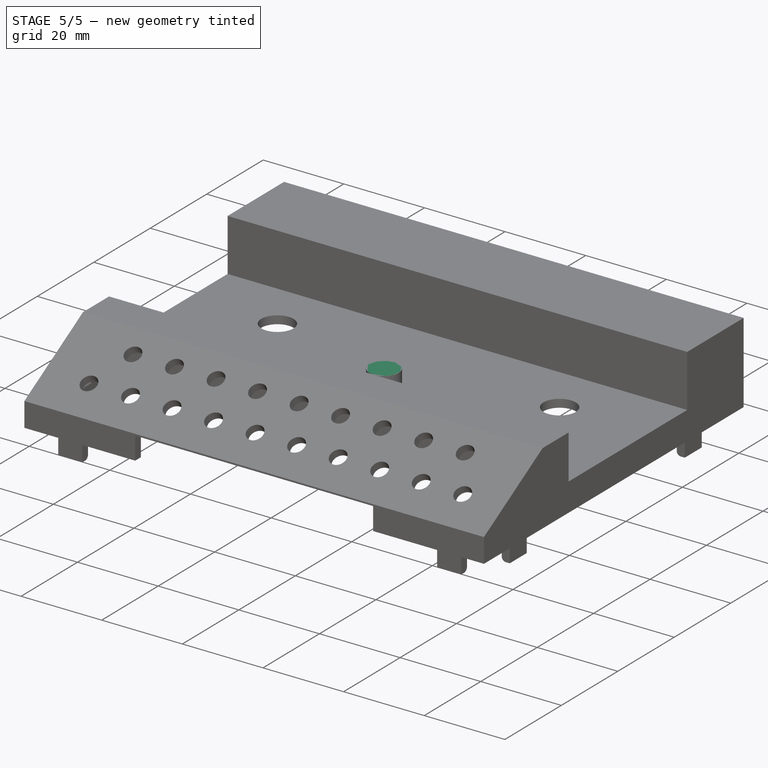
[diagram: stage 5 of 5 — iso view after this stage's code; geometry added in this stage tinted green]
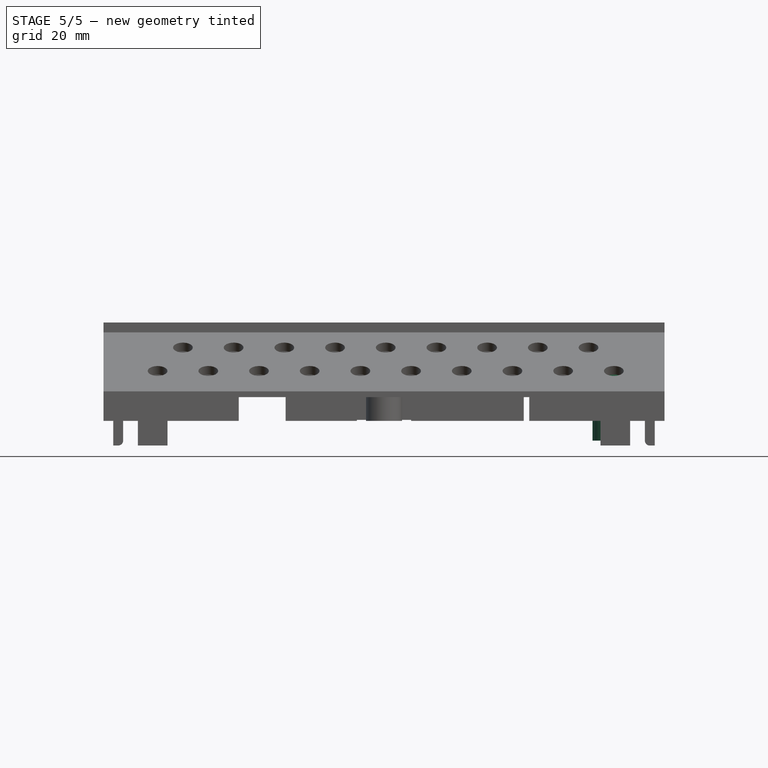
[diagram: stage 5 of 5 — front view after this stage's code; geometry added in this stage tinted green]
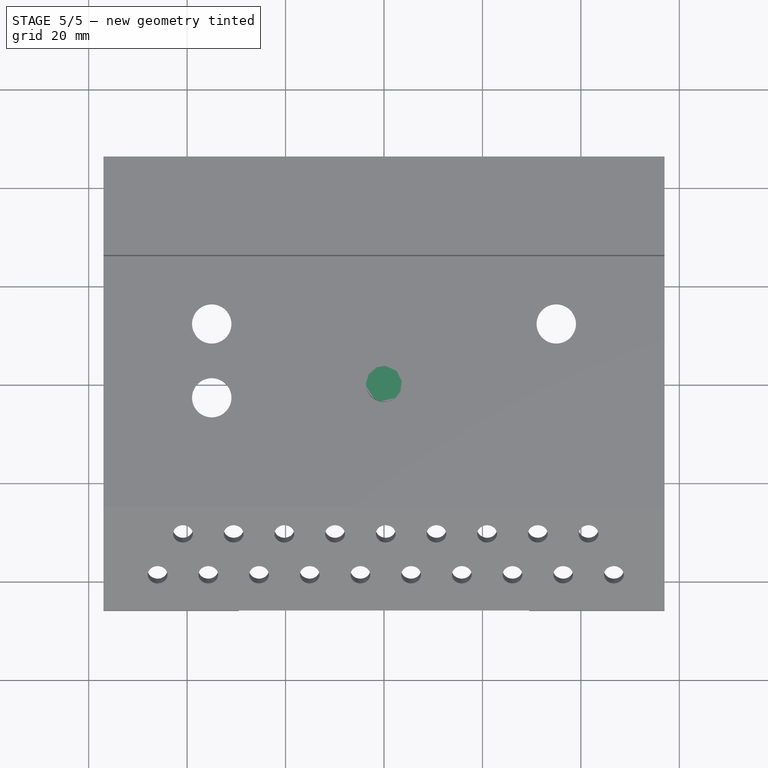
[diagram: stage 5 of 5 — top view after this stage's code; geometry added in this stage tinted green]
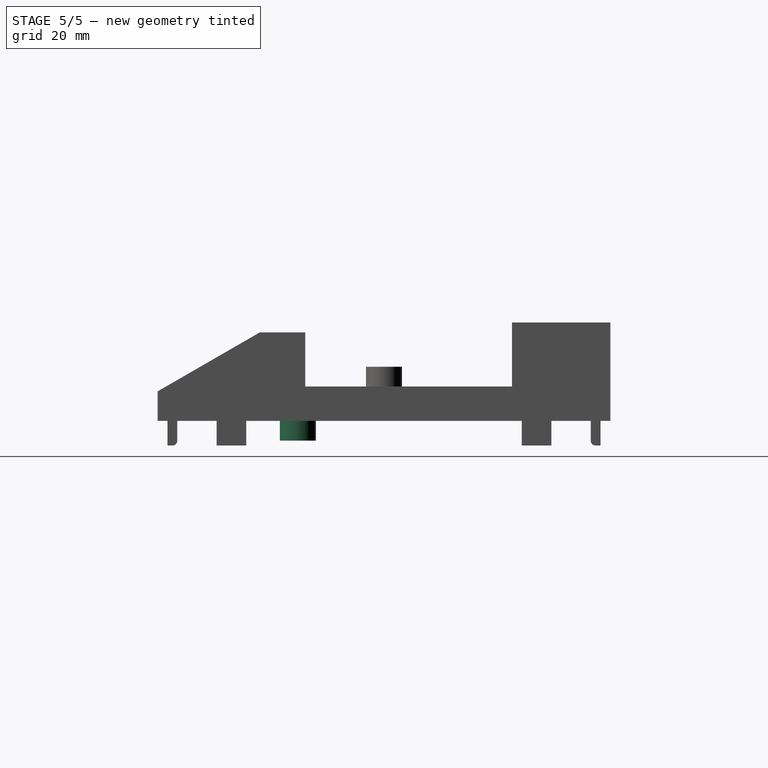
[diagram: stage 5 of 5 — right view after this stage's code; geometry added in this stage tinted green]
FEATURE [Sketcher::SketchObject] Sketch007
  FullyConstrained = true
  MapMode = 5
  Support = -> [XY_Plane002]
  expr: Constraints[1] = <<D>>.bot_h_d1 + <<D>>.bot_h_w_th / 2
  sketch-geometry (1):
    g0: Circle CenterX=0 CenterY=0 CenterZ=0 NormalX=0 NormalY=0 NormalZ=1 AngleXU=0 Radius=3.65
  constraints (2):
    c: Coincident(g0,g-1)
    c: Diameter(g0) = 7.3
FEATURE [PartDesign::Pad] Pad003
  Direction = (0,0,1)
  Length = 11
  Length2 = 10
  Profile = -> Sketch007
  ReferenceAxis = -> Sketch007 [N_Axis]
  Type = 0
  expr: Length = Spreadsheet.height1 - <<D>>.case_post_bottom
FEATURE [Sketcher::SketchObject] Sketch008
  FullyConstrained = true
  MapMode = 5
  Placement = pos=(0,0,0) rot=(1,0,0;3.14159rad)
  Support = -> [Pad003]
  expr: Constraints[1] = <<D>>.insert_d
  sketch-geometry (1):
    g0: Circle CenterX=0 CenterY=0 CenterZ=0 NormalX=0 NormalY=0 NormalZ=1 AngleXU=0 Radius=1.8
  constraints (2):
    c: Coincident(g0,g-1)
    c: Diameter(g0) = 3.6
FEATURE [PartDesign::Pocket] Pocket004
  BaseFeature = -> Pad003
  Direction = (0,0,1)
  Length = 8
  Length2 = 5
  Profile = -> Sketch008
  ReferenceAxis = -> Sketch008 [N_Axis]
  Type = 0
  expr: Length = <<D>>.insert_h_depth
FEATURE [Sketcher::SketchObject] Sketch009
  ExternalGeometry = -> [Sketch008]
  FullyConstrained = true
  MapMode = 5
  Placement = pos=(0,0,0) rot=(1,0,0;3.14159rad)
  Support = -> [Pocket004]
  expr: Constraints[1] = <<D>>.insert_o_d
  sketch-geometry (1):
    g0: Circle CenterX=0 CenterY=0 CenterZ=0 NormalX=0 NormalY=0 NormalZ=1 AngleXU=0 Radius=2.2
  constraints (2):
    c: Coincident(g0,g-3)
    c: Diameter(g0) = 4.4
FEATURE [PartDesign::Hole] Hole
  BaseFeature = -> Pocket004
  CustomThreadClearance = 0
  Depth = 0.8
  DepthType = 0
  Diameter = 4.4
  DrillForDepth = false
  DrillPoint = 1
  DrillPointAngle = 118
  HoleCutCountersinkAngle = 90
  HoleCutCustomValues = false
  HoleCutDepth = 0
  HoleCutDiameter = 4.8
  HoleCutType = 2
  ModelThread = false
  Profile = -> Sketch009
  Tapered = false
  TaperedAngle = 90
  ThreadClass = 0
  ThreadDepth = 0.8
  ThreadDepthType = 0
  ThreadDirection = 0
  ThreadFit = 0
  ThreadSize = 0
  ThreadType = 0
  Threaded = false
  UseCustomThreadClearance = false
  expr: Depth = <<D>>.insert_h_w_depth
  expr: Diameter = <<D>>.insert_o_d
  expr: HoleCutDiameter = <<D>>.insert_cs_d
FEATURE [PartDesign::Hole] Hole001
  BaseFeature = -> Pocket005
  CustomThreadClearance = 0
  Depth = 0.8
  DepthType = 0
  Diameter = 4.4
  DrillForDepth = false
  DrillPoint = 1
  DrillPointAngle = 118
  HoleCutCountersinkAngle = 90
  HoleCutCustomValues = false
  HoleCutDepth = 0
  HoleCutDiameter = 4.8
  HoleCutType = 2
  ModelThread = false
  Profile = -> Sketch009
  Tapered = false
  TaperedAngle = 90
  ThreadClass = 0
  ThreadDepth = 0.8
  ThreadDepthType = 0
  ThreadDirection = 0
  ThreadFit = 0
  ThreadSize = 0
  ThreadType = 0
  Threaded = false
  UseCustomThreadClearance = false
  expr: Depth = <<D>>.insert_h_w_depth
  expr: Diameter = <<D>>.insert_o_d
  expr: HoleCutDiameter = <<D>>.insert_cs_d
FEATURE [PartDesign::Body] Body003  label="Cutout"
  Group = -> [Sketch012,Pad005]
  Origin = -> Origin004
  Tip = -> Pad005
FEATURE [Part::Cut] Cut  label="Post2"
  Base = -> Body002
  Tool = -> Body003
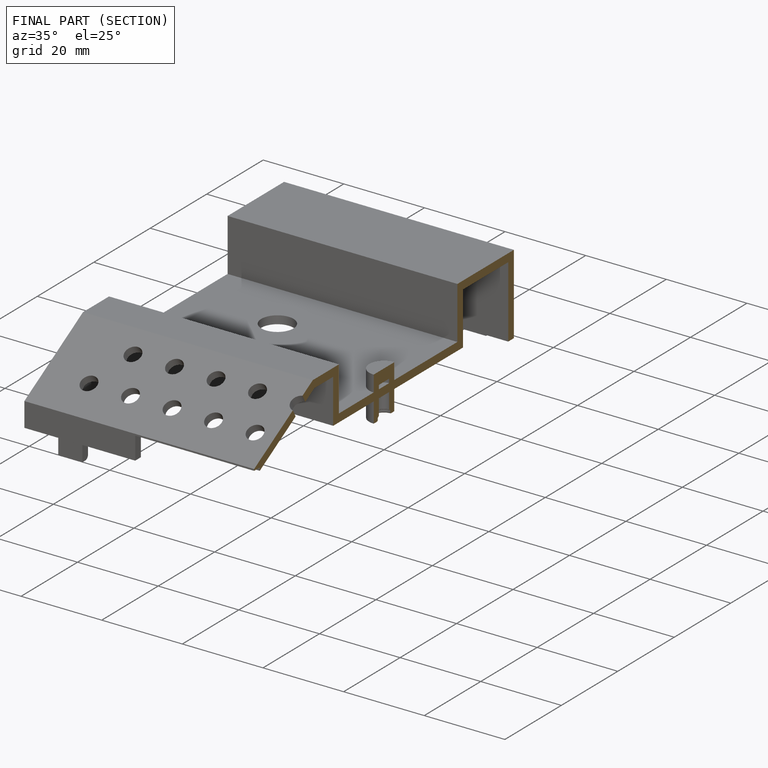
[diagram: finished part — half-section view (interior)]
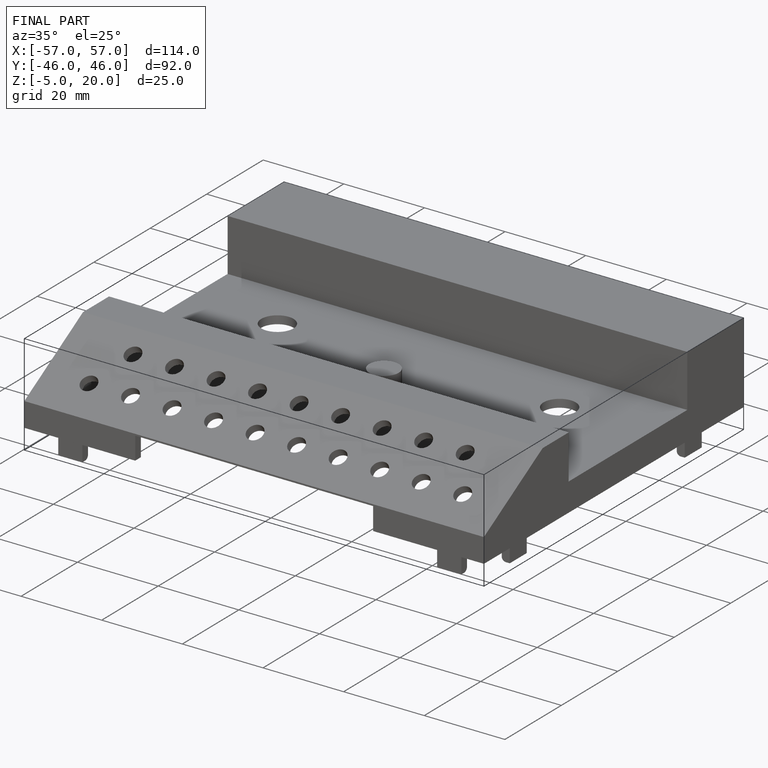
[diagram: finished part — iso view with bounding-box wireframe]
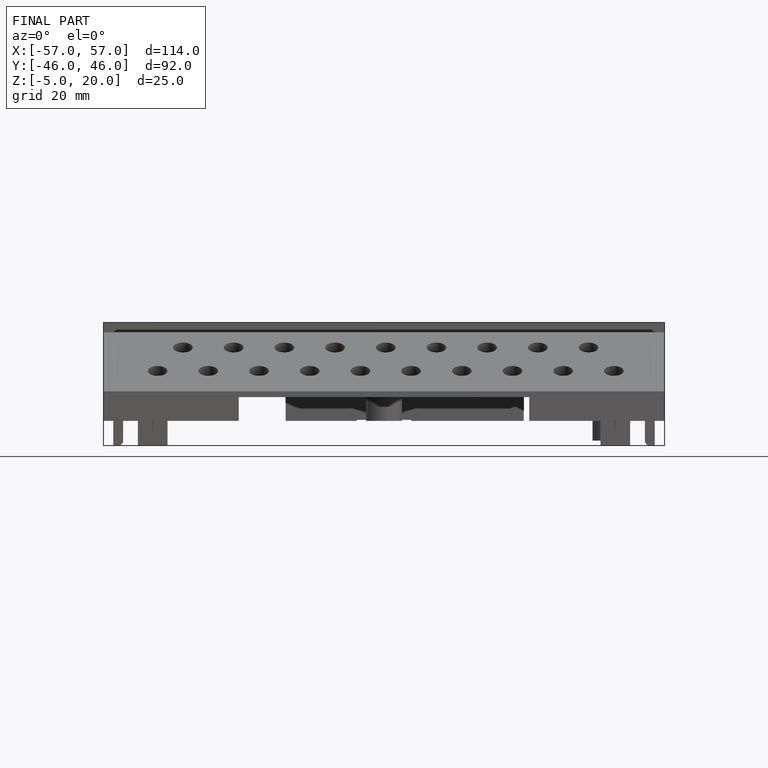
[diagram: finished part — front view with bounding-box wireframe]
